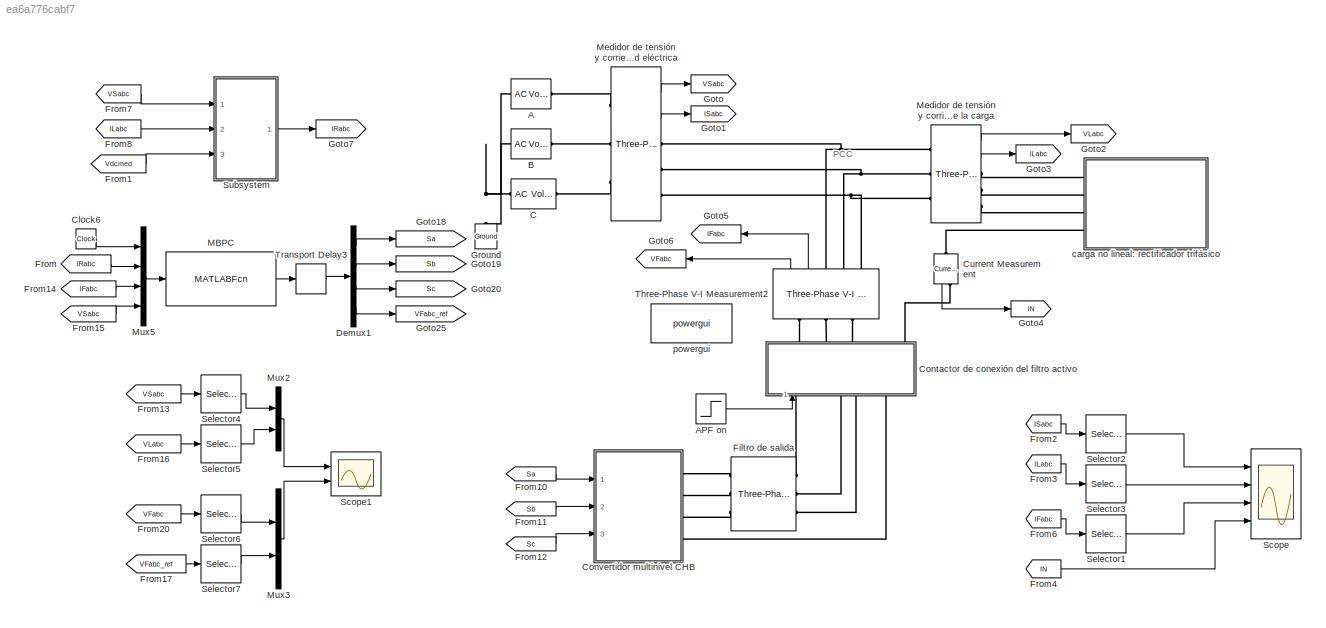
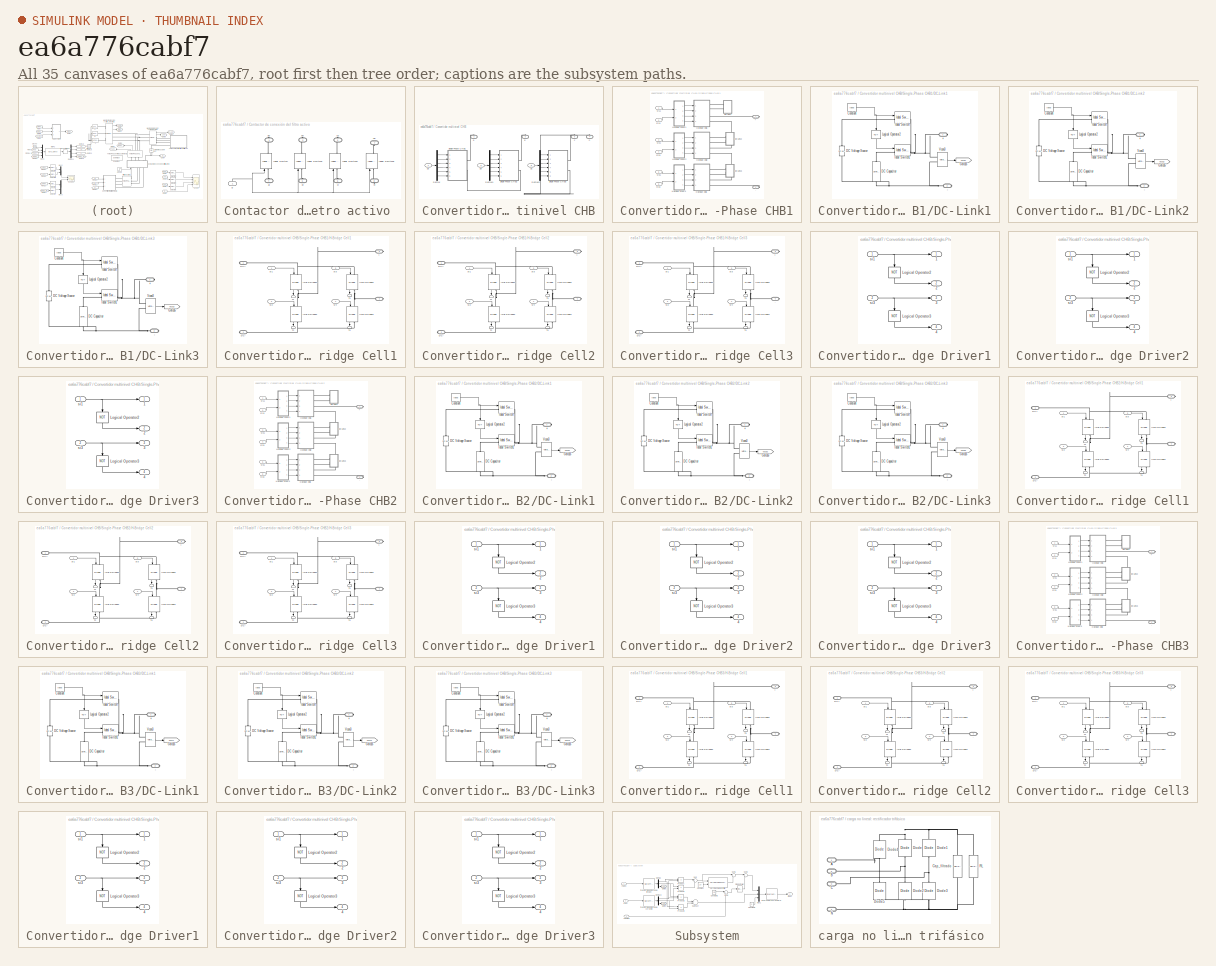
[diagram: thumbnail index - all 35 canvases of the model, root first then tree order]
MODEL slx_ea6a776cabf7
KIND model
CONFIG AbsTol = auto
CONFIG EnableMultiTasking = off
CONFIG FixedStep = auto
CONFIG MaxStep = 1e-4
CONFIG MinStep = auto
CONFIG RelTol = 1e-3
CONFIG SampleTimeConstraint = Unconstrained
CONFIG Solver = VariableStepAuto
CONFIG SolverName = VariableStepAuto
CONFIG StartTime = 0.0
CONFIG StopTime = 10.0
BLOCK [Reference] A   REF=powerlib/Electrical
Sources/AC Voltage Source
  Ports = [0, 0, 0, 0, 0, 1, 1]
  SourceBlock = powerlib/Electrical\nSources/AC Voltage Source
  SourceProductBaseCode = PS
  SourceProductName = Simscape Power Systems
  SourceType = AC Voltage Source
BLOCK [Step] APF on
  SampleTime = 0
  Time = APFon
BLOCK [Reference] B   REF=powerlib/Electrical
Sources/AC Voltage Source
  Ports = [0, 0, 0, 0, 0, 1, 1]
  SourceBlock = powerlib/Electrical\nSources/AC Voltage Source
  SourceProductBaseCode = PS
  SourceProductName = Simscape Power Systems
  SourceType = AC Voltage Source
BLOCK [Reference] C   REF=powerlib/Electrical
Sources/AC Voltage Source
  Ports = [0, 0, 0, 0, 0, 1, 1]
  SourceBlock = powerlib/Electrical\nSources/AC Voltage Source
  SourceProductBaseCode = PS
  SourceProductName = Simscape Power Systems
  SourceType = AC Voltage Source
BLOCK [Clock] Clock6
BLOCK [SubSystem] Contactor de conexión del filtro activo 
  Ports = [1, 0, 0, 0, 0, 4, 4]
  RequestExecContextInheritance = off
  Variant = off
BLOCK [Reference] Contactor de conexión del filtro activo /Ideal Switch  REF=powerlib/Power
Electronics/Ideal Switch
  Ports = [1, 1, 0, 0, 0, 1, 1]
  SourceBlock = powerlib/Power\nElectronics/Ideal Switch
  SourceProductBaseCode = PS
  SourceProductName = Simscape Power Systems
  SourceType = Ideal Switch
BLOCK [Reference] Contactor de conexión del filtro activo /Ideal Switch1  REF=powerlib/Power
Electronics/Ideal Switch
  Ports = [1, 1, 0, 0, 0, 1, 1]
  SourceBlock = powerlib/Power\nElectronics/Ideal Switch
  SourceProductBaseCode = PS
  SourceProductName = Simscape Power Systems
  SourceType = Ideal Switch
BLOCK [Reference] Contactor de conexión del filtro activo /Ideal Switch2  REF=powerlib/Power
Electronics/Ideal Switch
  Ports = [1, 1, 0, 0, 0, 1, 1]
  SourceBlock = powerlib/Power\nElectronics/Ideal Switch
  SourceProductBaseCode = PS
  SourceProductName = Simscape Power Systems
  SourceType = Ideal Switch
BLOCK [Reference] Contactor de conexión del filtro activo /Ideal Switch3  REF=powerlib/Power
Electronics/Ideal Switch
  Ports = [1, 1, 0, 0, 0, 1, 1]
  SourceBlock = powerlib/Power\nElectronics/Ideal Switch
  SourceProductBaseCode = PS
  SourceProductName = Simscape Power Systems
  SourceType = Ideal Switch
BLOCK [PMIOPort] Contactor de conexión del filtro activo /ai
  Port = 4
  Side = Left
BLOCK [PMIOPort] Contactor de conexión del filtro activo /ao
  Port = 1
  Side = Right
BLOCK [PMIOPort] Contactor de conexión del filtro activo /bi
  Port = 5
  Side = Left
BLOCK [PMIOPort] Contactor de conexión del filtro activo /bo
  Port = 2
  Side = Right
BLOCK [PMIOPort] Contactor de conexión del filtro activo /ci
  Port = 6
  Side = Left
BLOCK [PMIOPort] Contactor de conexión del filtro activo /co
  Port = 3
  Side = Right
BLOCK [Inport] Contactor de conexión del filtro activo /g
  IconDisplay = Port number
BLOCK [PMIOPort] Contactor de conexión del filtro activo /ni
  Port = 8
  Side = Right
BLOCK [PMIOPort] Contactor de conexión del filtro activo /no
  Port = 7
  Side = Left
BLOCK [SubSystem] Convertidor multinivel CHB
  Ports = [3, 0, 0, 0, 0, 0, 4]
  RequestExecContextInheritance = off
  Variant = off
BLOCK [Demux] Convertidor multinivel CHB/Demux
  DisplayOption = bar
  Outputs = 6
  Ports = [1, 6]
BLOCK [Demux] Convertidor multinivel CHB/Demux1
  DisplayOption = bar
  Outputs = 6
  Ports = [1, 6]
BLOCK [Demux] Convertidor multinivel CHB/Demux2
  DisplayOption = bar
  Outputs = 6
  Ports = [1, 6]
BLOCK [Inport] Convertidor multinivel CHB/Sa
  IconDisplay = Port number
BLOCK [Inport] Convertidor multinivel CHB/Sb
  IconDisplay = Port number
  Port = 2
BLOCK [Inport] Convertidor multinivel CHB/Sc
  IconDisplay = Port number
  Port = 3
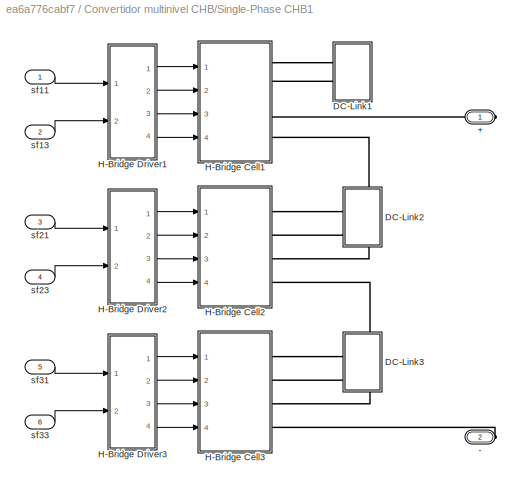
BLOCK [SubSystem] Convertidor multinivel CHB/Single-Phase CHB1
  Ports = [6, 0, 0, 0, 0, 0, 2]
  RequestExecContextInheritance = off
  Variant = off
BLOCK [PMIOPort] Convertidor multinivel CHB/Single-Phase CHB1/+
  Port = 1
  Side = Right
BLOCK [PMIOPort] Convertidor multinivel CHB/Single-Phase CHB1/-
  Port = 2
  Side = Right
BLOCK [SubSystem] Convertidor multinivel CHB/Single-Phase CHB1/DC-Link1
  Ports = [0, 0, 0, 0, 0, 0, 2]
  RequestExecContextInheritance = off
  Variant = off
BLOCK [PMIOPort] Convertidor multinivel CHB/Single-Phase CHB1/DC-Link1/+
  Port = 1
  Side = Right
BLOCK [PMIOPort] Convertidor multinivel CHB/Single-Phase CHB1/DC-Link1/-
  Port = 2
  Side = Right
BLOCK [Constant] Convertidor multinivel CHB/Single-Phase CHB1/DC-Link1/Constant
  Value = Ideal
BLOCK [Reference] Convertidor multinivel CHB/Single-Phase CHB1/DC-Link1/DC Capacitor  REF=powerlib/Elements/Series RLC Branch
  Ports = [0, 0, 0, 0, 0, 1, 1]
  SourceBlock = powerlib/Elements/Series RLC Branch
  SourceProductBaseCode = PS
  SourceProductName = Simscape Power Systems
  SourceType = Series RLC Branch
BLOCK [Reference] Convertidor multinivel CHB/Single-Phase CHB1/DC-Link1/DC Voltage Source  REF=powerlib/Electrical
Sources/DC Voltage Source
  Ports = [0, 0, 0, 0, 0, 1, 1]
  SourceBlock = powerlib/Electrical\nSources/DC Voltage Source
  SourceProductBaseCode = PS
  SourceProductName = Simscape Power Systems
  SourceType = DC Voltage Source
BLOCK [Goto] Convertidor multinivel CHB/Single-Phase CHB1/DC-Link1/Goto16
  GotoTag = Vcca1
  TagVisibility = global
BLOCK [Reference] Convertidor multinivel CHB/Single-Phase CHB1/DC-Link1/Ideal Switch  REF=powerlib/Power
Electronics/Ideal Switch
  Ports = [1, 1, 0, 0, 0, 1, 1]
  SourceBlock = powerlib/Power\nElectronics/Ideal Switch
  SourceProductBaseCode = PS
  SourceProductName = Simscape Power Systems
  SourceType = Ideal Switch
BLOCK [Reference] Convertidor multinivel CHB/Single-Phase CHB1/DC-Link1/Ideal Switch1  REF=powerlib/Power
Electronics/Ideal Switch
  Ports = [1, 1, 0, 0, 0, 1, 1]
  SourceBlock = powerlib/Power\nElectronics/Ideal Switch
  SourceProductBaseCode = PS
  SourceProductName = Simscape Power Systems
  SourceType = Ideal Switch
BLOCK [Logic] Convertidor multinivel CHB/Single-Phase CHB1/DC-Link1/Logical Operator2
  AllPortsSameDT = off
  Operator = NOT
  OutDataTypeStr = boolean
  Ports = [1, 1]
BLOCK [Reference] Convertidor multinivel CHB/Single-Phase CHB1/DC-Link1/Vcan3  REF=powerlib/Measurements/Voltage Measurement
  Ports = [0, 1, 0, 0, 0, 2]
  SourceBlock = powerlib/Measurements/Voltage Measurement
  SourceProductBaseCode = PS
  SourceProductName = Simscape Power Systems
  SourceType = Voltage Measurement
BLOCK [SubSystem] Convertidor multinivel CHB/Single-Phase CHB1/DC-Link2
  Ports = [0, 0, 0, 0, 0, 0, 2]
  RequestExecContextInheritance = off
  Variant = off
BLOCK [PMIOPort] Convertidor multinivel CHB/Single-Phase CHB1/DC-Link2/+
  Port = 1
  Side = Right
BLOCK [PMIOPort] Convertidor multinivel CHB/Single-Phase CHB1/DC-Link2/-
  Port = 2
  Side = Right
BLOCK [Constant] Convertidor multinivel CHB/Single-Phase CHB1/DC-Link2/Constant
  Value = Ideal
BLOCK [Reference] Convertidor multinivel CHB/Single-Phase CHB1/DC-Link2/DC Capacitor  REF=powerlib/Elements/Series RLC Branch
  Ports = [0, 0, 0, 0, 0, 1, 1]
  SourceBlock = powerlib/Elements/Series RLC Branch
  SourceProductBaseCode = PS
  SourceProductName = Simscape Power Systems
  SourceType = Series RLC Branch
BLOCK [Reference] Convertidor multinivel CHB/Single-Phase CHB1/DC-Link2/DC Voltage Source  REF=powerlib/Electrical
Sources/DC Voltage Source
  Ports = [0, 0, 0, 0, 0, 1, 1]
  SourceBlock = powerlib/Electrical\nSources/DC Voltage Source
  SourceProductBaseCode = PS
  SourceProductName = Simscape Power Systems
  SourceType = DC Voltage Source
BLOCK [Goto] Convertidor multinivel CHB/Single-Phase CHB1/DC-Link2/Goto16
  GotoTag = Vcca2
  TagVisibility = global
BLOCK [Reference] Convertidor multinivel CHB/Single-Phase CHB1/DC-Link2/Ideal Switch  REF=powerlib/Power
Electronics/Ideal Switch
  Ports = [1, 1, 0, 0, 0, 1, 1]
  SourceBlock = powerlib/Power\nElectronics/Ideal Switch
  SourceProductBaseCode = PS
  SourceProductName = Simscape Power Systems
  SourceType = Ideal Switch
BLOCK [Reference] Convertidor multinivel CHB/Single-Phase CHB1/DC-Link2/Ideal Switch1  REF=powerlib/Power
Electronics/Ideal Switch
  Ports = [1, 1, 0, 0, 0, 1, 1]
  SourceBlock = powerlib/Power\nElectronics/Ideal Switch
  SourceProductBaseCode = PS
  SourceProductName = Simscape Power Systems
  SourceType = Ideal Switch
BLOCK [Logic] Convertidor multinivel CHB/Single-Phase CHB1/DC-Link2/Logical Operator2
  AllPortsSameDT = off
  Operator = NOT
  OutDataTypeStr = boolean
  Ports = [1, 1]
BLOCK [Reference] Convertidor multinivel CHB/Single-Phase CHB1/DC-Link2/Vcan3  REF=powerlib/Measurements/Voltage Measurement
  Ports = [0, 1, 0, 0, 0, 2]
  SourceBlock = powerlib/Measurements/Voltage Measurement
  SourceProductBaseCode = PS
  SourceProductName = Simscape Power Systems
  SourceType = Voltage Measurement
BLOCK [SubSystem] Convertidor multinivel CHB/Single-Phase CHB1/DC-Link3
  Ports = [0, 0, 0, 0, 0, 0, 2]
  RequestExecContextInheritance = off
  Variant = off
BLOCK [PMIOPort] Convertidor multinivel CHB/Single-Phase CHB1/DC-Link3/+
  Port = 1
  Side = Right
BLOCK [PMIOPort] Convertidor multinivel CHB/Single-Phase CHB1/DC-Link3/-
  Port = 2
  Side = Right
BLOCK [Constant] Convertidor multinivel CHB/Single-Phase CHB1/DC-Link3/Constant
  Value = Ideal
BLOCK [Reference] Convertidor multinivel CHB/Single-Phase CHB1/DC-Link3/DC Capacitor  REF=powerlib/Elements/Series RLC Branch
  Ports = [0, 0, 0, 0, 0, 1, 1]
  SourceBlock = powerlib/Elements/Series RLC Branch
  SourceProductBaseCode = PS
  SourceProductName = Simscape Power Systems
  SourceType = Series RLC Branch
BLOCK [Reference] Convertidor multinivel CHB/Single-Phase CHB1/DC-Link3/DC Voltage Source  REF=powerlib/Electrical
Sources/DC Voltage Source
  Ports = [0, 0, 0, 0, 0, 1, 1]
  SourceBlock = powerlib/Electrical\nSources/DC Voltage Source
  SourceProductBaseCode = PS
  SourceProductName = Simscape Power Systems
  SourceType = DC Voltage Source
BLOCK [Goto] Convertidor multinivel CHB/Single-Phase CHB1/DC-Link3/Goto16
  GotoTag = Vcca3
  TagVisibility = global
BLOCK [Reference] Convertidor multinivel CHB/Single-Phase CHB1/DC-Link3/Ideal Switch  REF=powerlib/Power
Electronics/Ideal Switch
  Ports = [1, 1, 0, 0, 0, 1, 1]
  SourceBlock = powerlib/Power\nElectronics/Ideal Switch
  SourceProductBaseCode = PS
  SourceProductName = Simscape Power Systems
  SourceType = Ideal Switch
BLOCK [Reference] Convertidor multinivel CHB/Single-Phase CHB1/DC-Link3/Ideal Switch1  REF=powerlib/Power
Electronics/Ideal Switch
  Ports = [1, 1, 0, 0, 0, 1, 1]
  SourceBlock = powerlib/Power\nElectronics/Ideal Switch
  SourceProductBaseCode = PS
  SourceProductName = Simscape Power Systems
  SourceType = Ideal Switch
BLOCK [Logic] Convertidor multinivel CHB/Single-Phase CHB1/DC-Link3/Logical Operator2
  AllPortsSameDT = off
  Operator = NOT
  OutDataTypeStr = boolean
  Ports = [1, 1]
BLOCK [Reference] Convertidor multinivel CHB/Single-Phase CHB1/DC-Link3/Vcan3  REF=powerlib/Measurements/Voltage Measurement
  Ports = [0, 1, 0, 0, 0, 2]
  SourceBlock = powerlib/Measurements/Voltage Measurement
  SourceProductBaseCode = PS
  SourceProductName = Simscape Power Systems
  SourceType = Voltage Measurement
BLOCK [SubSystem] Convertidor multinivel CHB/Single-Phase CHB1/H-Bridge Cell1
  Ports = [4, 0, 0, 0, 0, 0, 4]
  RequestExecContextInheritance = off
  Variant = off
BLOCK [PMIOPort] Convertidor multinivel CHB/Single-Phase CHB1/H-Bridge Cell1/+
  Port = 3
  Side = Right
BLOCK [PMIOPort] Convertidor multinivel CHB/Single-Phase CHB1/H-Bridge Cell1/-
  Port = 4
  Side = Right
BLOCK [PMIOPort] Convertidor multinivel CHB/Single-Phase CHB1/H-Bridge Cell1/DC+
  Port = 1
  Side = Right
BLOCK [PMIOPort] Convertidor multinivel CHB/Single-Phase CHB1/H-Bridge Cell1/DC-
  Port = 2
  Side = Right
BLOCK [Reference] Convertidor multinivel CHB/Single-Phase CHB1/H-Bridge Cell1/IGBT//Diode1  REF=powerlib/Power
Electronics/IGBT//Diode
  Ports = [1, 1, 0, 0, 0, 1, 1]
  SourceBlock = powerlib/Power\nElectronics/IGBT//Diode
  SourceProductBaseCode = PS
  SourceProductName = Simscape Power Systems
  SourceType = IGBT/Diode
BLOCK [Reference] Convertidor multinivel CHB/Single-Phase CHB1/H-Bridge Cell1/IGBT//Diode2  REF=powerlib/Power
Electronics/IGBT//Diode
  Ports = [1, 1, 0, 0, 0, 1, 1]
  SourceBlock = powerlib/Power\nElectronics/IGBT//Diode
  SourceProductBaseCode = PS
  SourceProductName = Simscape Power Systems
  SourceType = IGBT/Diode
BLOCK [Reference] Convertidor multinivel CHB/Single-Phase CHB1/H-Bridge Cell1/IGBT//Diode3  REF=powerlib/Power
Electronics/IGBT//Diode
  Ports = [1, 1, 0, 0, 0, 1, 1]
  SourceBlock = powerlib/Power\nElectronics/IGBT//Diode
  SourceProductBaseCode = PS
  SourceProductName = Simscape Power Systems
  SourceType = IGBT/Diode
BLOCK [Reference] Convertidor multinivel CHB/Single-Phase CHB1/H-Bridge Cell1/IGBT//Diode4  REF=powerlib/Power
Electronics/IGBT//Diode
  Ports = [1, 1, 0, 0, 0, 1, 1]
  SourceBlock = powerlib/Power\nElectronics/IGBT//Diode
  SourceProductBaseCode = PS
  SourceProductName = Simscape Power Systems
  SourceType = IGBT/Diode
BLOCK [Terminator] Convertidor multinivel CHB/Single-Phase CHB1/H-Bridge Cell1/T1
BLOCK [Terminator] Convertidor multinivel CHB/Single-Phase CHB1/H-Bridge Cell1/T2
BLOCK [Terminator] Convertidor multinivel CHB/Single-Phase CHB1/H-Bridge Cell1/T3
BLOCK [Terminator] Convertidor multinivel CHB/Single-Phase CHB1/H-Bridge Cell1/T4
BLOCK [Inport] Convertidor multinivel CHB/Single-Phase CHB1/H-Bridge Cell1/si1
  IconDisplay = Port number
BLOCK [Inport] Convertidor multinivel CHB/Single-Phase CHB1/H-Bridge Cell1/si2
  IconDisplay = Port number
  Port = 2
BLOCK [Inport] Convertidor multinivel CHB/Single-Phase CHB1/H-Bridge Cell1/si3
  IconDisplay = Port number
  Port = 3
BLOCK [Inport] Convertidor multinivel CHB/Single-Phase CHB1/H-Bridge Cell1/si4
  IconDisplay = Port number
  Port = 4
BLOCK [SubSystem] Convertidor multinivel CHB/Single-Phase CHB1/H-Bridge Cell2
  Ports = [4, 0, 0, 0, 0, 0, 4]
  RequestExecContextInheritance = off
  Variant = off
BLOCK [PMIOPort] Convertidor multinivel CHB/Single-Phase CHB1/H-Bridge Cell2/+
  Port = 3
  Side = Right
BLOCK [PMIOPort] Convertidor multinivel CHB/Single-Phase CHB1/H-Bridge Cell2/-
  Port = 4
  Side = Right
BLOCK [PMIOPort] Convertidor multinivel CHB/Single-Phase CHB1/H-Bridge Cell2/DC+
  Port = 1
  Side = Right
BLOCK [PMIOPort] Convertidor multinivel CHB/Single-Phase CHB1/H-Bridge Cell2/DC-
  Port = 2
  Side = Right
BLOCK [Reference] Convertidor multinivel CHB/Single-Phase CHB1/H-Bridge Cell2/IGBT//Diode1  REF=powerlib/Power
Electronics/IGBT//Diode
  Ports = [1, 1, 0, 0, 0, 1, 1]
  SourceBlock = powerlib/Power\nElectronics/IGBT//Diode
  SourceProductBaseCode = PS
  SourceProductName = Simscape Power Systems
  SourceType = IGBT/Diode
BLOCK [Reference] Convertidor multinivel CHB/Single-Phase CHB1/H-Bridge Cell2/IGBT//Diode2  REF=powerlib/Power
Electronics/IGBT//Diode
  Ports = [1, 1, 0, 0, 0, 1, 1]
  SourceBlock = powerlib/Power\nElectronics/IGBT//Diode
  SourceProductBaseCode = PS
  SourceProductName = Simscape Power Systems
  SourceType = IGBT/Diode
BLOCK [Reference] Convertidor multinivel CHB/Single-Phase CHB1/H-Bridge Cell2/IGBT//Diode3  REF=powerlib/Power
Electronics/IGBT//Diode
  Ports = [1, 1, 0, 0, 0, 1, 1]
  SourceBlock = powerlib/Power\nElectronics/IGBT//Diode
  SourceProductBaseCode = PS
  SourceProductName = Simscape Power Systems
  SourceType = IGBT/Diode
BLOCK [Reference] Convertidor multinivel CHB/Single-Phase CHB1/H-Bridge Cell2/IGBT//Diode4  REF=powerlib/Power
Electronics/IGBT//Diode
  Ports = [1, 1, 0, 0, 0, 1, 1]
  SourceBlock = powerlib/Power\nElectronics/IGBT//Diode
  SourceProductBaseCode = PS
  SourceProductName = Simscape Power Systems
  SourceType = IGBT/Diode
BLOCK [Terminator] Convertidor multinivel CHB/Single-Phase CHB1/H-Bridge Cell2/T1
BLOCK [Terminator] Convertidor multinivel CHB/Single-Phase CHB1/H-Bridge Cell2/T2
BLOCK [Terminator] Convertidor multinivel CHB/Single-Phase CHB1/H-Bridge Cell2/T3
BLOCK [Terminator] Convertidor multinivel CHB/Single-Phase CHB1/H-Bridge Cell2/T4
BLOCK [Inport] Convertidor multinivel CHB/Single-Phase CHB1/H-Bridge Cell2/si1
  IconDisplay = Port number
BLOCK [Inport] Convertidor multinivel CHB/Single-Phase CHB1/H-Bridge Cell2/si2
  IconDisplay = Port number
  Port = 2
BLOCK [Inport] Convertidor multinivel CHB/Single-Phase CHB1/H-Bridge Cell2/si3
  IconDisplay = Port number
  Port = 3
BLOCK [Inport] Convertidor multinivel CHB/Single-Phase CHB1/H-Bridge Cell2/si4
  IconDisplay = Port number
  Port = 4
BLOCK [SubSystem] Convertidor multinivel CHB/Single-Phase CHB1/H-Bridge Cell3
  Ports = [4, 0, 0, 0, 0, 0, 4]
  RequestExecContextInheritance = off
  Variant = off
BLOCK [PMIOPort] Convertidor multinivel CHB/Single-Phase CHB1/H-Bridge Cell3/+
  Port = 3
  Side = Right
BLOCK [PMIOPort] Convertidor multinivel CHB/Single-Phase CHB1/H-Bridge Cell3/-
  Port = 4
  Side = Right
BLOCK [PMIOPort] Convertidor multinivel CHB/Single-Phase CHB1/H-Bridge Cell3/DC+
  Port = 1
  Side = Right
BLOCK [PMIOPort] Convertidor multinivel CHB/Single-Phase CHB1/H-Bridge Cell3/DC-
  Port = 2
  Side = Right
BLOCK [Reference] Convertidor multinivel CHB/Single-Phase CHB1/H-Bridge Cell3/IGBT//Diode1  REF=powerlib/Power
Electronics/IGBT//Diode
  Ports = [1, 1, 0, 0, 0, 1, 1]
  SourceBlock = powerlib/Power\nElectronics/IGBT//Diode
  SourceProductBaseCode = PS
  SourceProductName = Simscape Power Systems
  SourceType = IGBT/Diode
BLOCK [Reference] Convertidor multinivel CHB/Single-Phase CHB1/H-Bridge Cell3/IGBT//Diode2  REF=powerlib/Power
Electronics/IGBT//Diode
  Ports = [1, 1, 0, 0, 0, 1, 1]
  SourceBlock = powerlib/Power\nElectronics/IGBT//Diode
  SourceProductBaseCode = PS
  SourceProductName = Simscape Power Systems
  SourceType = IGBT/Diode
BLOCK [Reference] Convertidor multinivel CHB/Single-Phase CHB1/H-Bridge Cell3/IGBT//Diode3  REF=powerlib/Power
Electronics/IGBT//Diode
  Ports = [1, 1, 0, 0, 0, 1, 1]
  SourceBlock = powerlib/Power\nElectronics/IGBT//Diode
  SourceProductBaseCode = PS
  SourceProductName = Simscape Power Systems
  SourceType = IGBT/Diode
BLOCK [Reference] Convertidor multinivel CHB/Single-Phase CHB1/H-Bridge Cell3/IGBT//Diode4  REF=powerlib/Power
Electronics/IGBT//Diode
  Ports = [1, 1, 0, 0, 0, 1, 1]
  SourceBlock = powerlib/Power\nElectronics/IGBT//Diode
  SourceProductBaseCode = PS
  SourceProductName = Simscape Power Systems
  SourceType = IGBT/Diode
BLOCK [Terminator] Convertidor multinivel CHB/Single-Phase CHB1/H-Bridge Cell3/T1
BLOCK [Terminator] Convertidor multinivel CHB/Single-Phase CHB1/H-Bridge Cell3/T2
BLOCK [Terminator] Convertidor multinivel CHB/Single-Phase CHB1/H-Bridge Cell3/T3
BLOCK [Terminator] Convertidor multinivel CHB/Single-Phase CHB1/H-Bridge Cell3/T4
BLOCK [Inport] Convertidor multinivel CHB/Single-Phase CHB1/H-Bridge Cell3/si1
  IconDisplay = Port number
BLOCK [Inport] Convertidor multinivel CHB/Single-Phase CHB1/H-Bridge Cell3/si2
  IconDisplay = Port number
  Port = 2
BLOCK [Inport] Convertidor multinivel CHB/Single-Phase CHB1/H-Bridge Cell3/si3
  IconDisplay = Port number
  Port = 3
BLOCK [Inport] Convertidor multinivel CHB/Single-Phase CHB1/H-Bridge Cell3/si4
  IconDisplay = Port number
  Port = 4
BLOCK [SubSystem] Convertidor multinivel CHB/Single-Phase CHB1/H-Bridge Driver1
  Ports = [2, 4]
  RequestExecContextInheritance = off
  Variant = off
BLOCK [Outport] Convertidor multinivel CHB/Single-Phase CHB1/H-Bridge Driver1/1
  IconDisplay = Port number
BLOCK [Outport] Convertidor multinivel CHB/Single-Phase CHB1/H-Bridge Driver1/2
  IconDisplay = Port number
  Port = 2
BLOCK [Outport] Convertidor multinivel CHB/Single-Phase CHB1/H-Bridge Driver1/3
  IconDisplay = Port number
  Port = 3
BLOCK [Outport] Convertidor multinivel CHB/Single-Phase CHB1/H-Bridge Driver1/4
  IconDisplay = Port number
  Port = 4
BLOCK [Logic] Convertidor multinivel CHB/Single-Phase CHB1/H-Bridge Driver1/Logical Operator2
  AllPortsSameDT = off
  Operator = NOT
  OutDataTypeStr = boolean
  Ports = [1, 1]
BLOCK [Logic] Convertidor multinivel CHB/Single-Phase CHB1/H-Bridge Driver1/Logical Operator3
  AllPortsSameDT = off
  Operator = NOT
  OutDataTypeStr = boolean
  Ports = [1, 1]
BLOCK [Inport] Convertidor multinivel CHB/Single-Phase CHB1/H-Bridge Driver1/si1
  IconDisplay = Port number
BLOCK [Inport] Convertidor multinivel CHB/Single-Phase CHB1/H-Bridge Driver1/si3
  IconDisplay = Port number
  Port = 2
BLOCK [SubSystem] Convertidor multinivel CHB/Single-Phase CHB1/H-Bridge Driver2
  Ports = [2, 4]
  RequestExecContextInheritance = off
  Variant = off
BLOCK [Outport] Convertidor multinivel CHB/Single-Phase CHB1/H-Bridge Driver2/1
  IconDisplay = Port number
BLOCK [Outport] Convertidor multinivel CHB/Single-Phase CHB1/H-Bridge Driver2/2
  IconDisplay = Port number
  Port = 2
BLOCK [Outport] Convertidor multinivel CHB/Single-Phase CHB1/H-Bridge Driver2/3
  IconDisplay = Port number
  Port = 3
BLOCK [Outport] Convertidor multinivel CHB/Single-Phase CHB1/H-Bridge Driver2/4
  IconDisplay = Port number
  Port = 4
BLOCK [Logic] Convertidor multinivel CHB/Single-Phase CHB1/H-Bridge Driver2/Logical Operator2
  AllPortsSameDT = off
  Operator = NOT
  OutDataTypeStr = boolean
  Ports = [1, 1]
BLOCK [Logic] Convertidor multinivel CHB/Single-Phase CHB1/H-Bridge Driver2/Logical Operator3
  AllPortsSameDT = off
  Operator = NOT
  OutDataTypeStr = boolean
  Ports = [1, 1]
BLOCK [Inport] Convertidor multinivel CHB/Single-Phase CHB1/H-Bridge Driver2/si1
  IconDisplay = Port number
BLOCK [Inport] Convertidor multinivel CHB/Single-Phase CHB1/H-Bridge Driver2/si3
  IconDisplay = Port number
  Port = 2
BLOCK [SubSystem] Convertidor multinivel CHB/Single-Phase CHB1/H-Bridge Driver3
  Ports = [2, 4]
  RequestExecContextInheritance = off
  Variant = off
BLOCK [Outport] Convertidor multinivel CHB/Single-Phase CHB1/H-Bridge Driver3/1
  IconDisplay = Port number
BLOCK [Outport] Convertidor multinivel CHB/Single-Phase CHB1/H-Bridge Driver3/2
  IconDisplay = Port number
  Port = 2
BLOCK [Outport] Convertidor multinivel CHB/Single-Phase CHB1/H-Bridge Driver3/3
  IconDisplay = Port number
  Port = 3
BLOCK [Outport] Convertidor multinivel CHB/Single-Phase CHB1/H-Bridge Driver3/4
  IconDisplay = Port number
  Port = 4
BLOCK [Logic] Convertidor multinivel CHB/Single-Phase CHB1/H-Bridge Driver3/Logical Operator2
  AllPortsSameDT = off
  Operator = NOT
  OutDataTypeStr = boolean
  Ports = [1, 1]
BLOCK [Logic] Convertidor multinivel CHB/Single-Phase CHB1/H-Bridge Driver3/Logical Operator3
  AllPortsSameDT = off
  Operator = NOT
  OutDataTypeStr = boolean
  Ports = [1, 1]
BLOCK [Inport] Convertidor multinivel CHB/Single-Phase CHB1/H-Bridge Driver3/si1
  IconDisplay = Port number
BLOCK [Inport] Convertidor multinivel CHB/Single-Phase CHB1/H-Bridge Driver3/si3
  IconDisplay = Port number
  Port = 2
BLOCK [Inport] Convertidor multinivel CHB/Single-Phase CHB1/sf11
  IconDisplay = Port number
BLOCK [Inport] Convertidor multinivel CHB/Single-Phase CHB1/sf13
  IconDisplay = Port number
  Port = 2
BLOCK [Inport] Convertidor multinivel CHB/Single-Phase CHB1/sf21
  IconDisplay = Port number
  Port = 3
BLOCK [Inport] Convertidor multinivel CHB/Single-Phase CHB1/sf23
  IconDisplay = Port number
  Port = 4
BLOCK [Inport] Convertidor multinivel CHB/Single-Phase CHB1/sf31
  IconDisplay = Port number
  Port = 5
BLOCK [Inport] Convertidor multinivel CHB/Single-Phase CHB1/sf33
  IconDisplay = Port number
  Port = 6
BLOCK [SubSystem] Convertidor multinivel CHB/Single-Phase CHB2
  Ports = [6, 0, 0, 0, 0, 0, 2]
  RequestExecContextInheritance = off
  Variant = off
BLOCK [PMIOPort] Convertidor multinivel CHB/Single-Phase CHB2/+
  Port = 1
  Side = Right
BLOCK [PMIOPort] Convertidor multinivel CHB/Single-Phase CHB2/-
  Port = 2
  Side = Right
BLOCK [SubSystem] Convertidor multinivel CHB/Single-Phase CHB2/DC-Link1
  Ports = [0, 0, 0, 0, 0, 0, 2]
  RequestExecContextInheritance = off
  Variant = off
BLOCK [PMIOPort] Convertidor multinivel CHB/Single-Phase CHB2/DC-Link1/+
  Port = 1
  Side = Right
BLOCK [PMIOPort] Convertidor multinivel CHB/Single-Phase CHB2/DC-Link1/-
  Port = 2
  Side = Right
BLOCK [Constant] Convertidor multinivel CHB/Single-Phase CHB2/DC-Link1/Constant
  Value = Ideal
BLOCK [Reference] Convertidor multinivel CHB/Single-Phase CHB2/DC-Link1/DC Capacitor  REF=powerlib/Elements/Series RLC Branch
  Ports = [0, 0, 0, 0, 0, 1, 1]
  SourceBlock = powerlib/Elements/Series RLC Branch
  SourceProductBaseCode = PS
  SourceProductName = Simscape Power Systems
  SourceType = Series RLC Branch
BLOCK [Reference] Convertidor multinivel CHB/Single-Phase CHB2/DC-Link1/DC Voltage Source  REF=powerlib/Electrical
Sources/DC Voltage Source
  Ports = [0, 0, 0, 0, 0, 1, 1]
  SourceBlock = powerlib/Electrical\nSources/DC Voltage Source
  SourceProductBaseCode = PS
  SourceProductName = Simscape Power Systems
  SourceType = DC Voltage Source
BLOCK [Goto] Convertidor multinivel CHB/Single-Phase CHB2/DC-Link1/Goto16
  GotoTag = Vccb1
  TagVisibility = global
BLOCK [Reference] Convertidor multinivel CHB/Single-Phase CHB2/DC-Link1/Ideal Switch  REF=powerlib/Power
Electronics/Ideal Switch
  Ports = [1, 1, 0, 0, 0, 1, 1]
  SourceBlock = powerlib/Power\nElectronics/Ideal Switch
  SourceProductBaseCode = PS
  SourceProductName = Simscape Power Systems
  SourceType = Ideal Switch
BLOCK [Reference] Convertidor multinivel CHB/Single-Phase CHB2/DC-Link1/Ideal Switch1  REF=powerlib/Power
Electronics/Ideal Switch
  Ports = [1, 1, 0, 0, 0, 1, 1]
  SourceBlock = powerlib/Power\nElectronics/Ideal Switch
  SourceProductBaseCode = PS
  SourceProductName = Simscape Power Systems
  SourceType = Ideal Switch
BLOCK [Logic] Convertidor multinivel CHB/Single-Phase CHB2/DC-Link1/Logical Operator2
  AllPortsSameDT = off
  Operator = NOT
  OutDataTypeStr = boolean
  Ports = [1, 1]
BLOCK [Reference] Convertidor multinivel CHB/Single-Phase CHB2/DC-Link1/Vcan3  REF=powerlib/Measurements/Voltage Measurement
  Ports = [0, 1, 0, 0, 0, 2]
  SourceBlock = powerlib/Measurements/Voltage Measurement
  SourceProductBaseCode = PS
  SourceProductName = Simscape Power Systems
  SourceType = Voltage Measurement
BLOCK [SubSystem] Convertidor multinivel CHB/Single-Phase CHB2/DC-Link2
  Ports = [0, 0, 0, 0, 0, 0, 2]
  RequestExecContextInheritance = off
  Variant = off
BLOCK [PMIOPort] Convertidor multinivel CHB/Single-Phase CHB2/DC-Link2/+
  Port = 1
  Side = Right
BLOCK [PMIOPort] Convertidor multinivel CHB/Single-Phase CHB2/DC-Link2/-
  Port = 2
  Side = Right
BLOCK [Constant] Convertidor multinivel CHB/Single-Phase CHB2/DC-Link2/Constant
  Value = Ideal
BLOCK [Reference] Convertidor multinivel CHB/Single-Phase CHB2/DC-Link2/DC Capacitor  REF=powerlib/Elements/Series RLC Branch
  Ports = [0, 0, 0, 0, 0, 1, 1]
  SourceBlock = powerlib/Elements/Series RLC Branch
  SourceProductBaseCode = PS
  SourceProductName = Simscape Power Systems
  SourceType = Series RLC Branch
BLOCK [Reference] Convertidor multinivel CHB/Single-Phase CHB2/DC-Link2/DC Voltage Source  REF=powerlib/Electrical
Sources/DC Voltage Source
  Ports = [0, 0, 0, 0, 0, 1, 1]
  SourceBlock = powerlib/Electrical\nSources/DC Voltage Source
  SourceProductBaseCode = PS
  SourceProductName = Simscape Power Systems
  SourceType = DC Voltage Source
BLOCK [Goto] Convertidor multinivel CHB/Single-Phase CHB2/DC-Link2/Goto16
  GotoTag = Vccb2
  TagVisibility = global
BLOCK [Reference] Convertidor multinivel CHB/Single-Phase CHB2/DC-Link2/Ideal Switch  REF=powerlib/Power
Electronics/Ideal Switch
  Ports = [1, 1, 0, 0, 0, 1, 1]
  SourceBlock = powerlib/Power\nElectronics/Ideal Switch
  SourceProductBaseCode = PS
  SourceProductName = Simscape Power Systems
  SourceType = Ideal Switch
BLOCK [Reference] Convertidor multinivel CHB/Single-Phase CHB2/DC-Link2/Ideal Switch1  REF=powerlib/Power
Electronics/Ideal Switch
  Ports = [1, 1, 0, 0, 0, 1, 1]
  SourceBlock = powerlib/Power\nElectronics/Ideal Switch
  SourceProductBaseCode = PS
  SourceProductName = Simscape Power Systems
  SourceType = Ideal Switch
BLOCK [Logic] Convertidor multinivel CHB/Single-Phase CHB2/DC-Link2/Logical Operator2
  AllPortsSameDT = off
  Operator = NOT
  OutDataTypeStr = boolean
  Ports = [1, 1]
BLOCK [Reference] Convertidor multinivel CHB/Single-Phase CHB2/DC-Link2/Vcan3  REF=powerlib/Measurements/Voltage Measurement
  Ports = [0, 1, 0, 0, 0, 2]
  SourceBlock = powerlib/Measurements/Voltage Measurement
  SourceProductBaseCode = PS
  SourceProductName = Simscape Power Systems
  SourceType = Voltage Measurement
BLOCK [SubSystem] Convertidor multinivel CHB/Single-Phase CHB2/DC-Link3
  Ports = [0, 0, 0, 0, 0, 0, 2]
  RequestExecContextInheritance = off
  Variant = off
BLOCK [PMIOPort] Convertidor multinivel CHB/Single-Phase CHB2/DC-Link3/+
  Port = 1
  Side = Right
BLOCK [PMIOPort] Convertidor multinivel CHB/Single-Phase CHB2/DC-Link3/-
  Port = 2
  Side = Right
BLOCK [Constant] Convertidor multinivel CHB/Single-Phase CHB2/DC-Link3/Constant
  Value = Ideal
BLOCK [Reference] Convertidor multinivel CHB/Single-Phase CHB2/DC-Link3/DC Capacitor  REF=powerlib/Elements/Series RLC Branch
  Ports = [0, 0, 0, 0, 0, 1, 1]
  SourceBlock = powerlib/Elements/Series RLC Branch
  SourceProductBaseCode = PS
  SourceProductName = Simscape Power Systems
  SourceType = Series RLC Branch
BLOCK [Reference] Convertidor multinivel CHB/Single-Phase CHB2/DC-Link3/DC Voltage Source  REF=powerlib/Electrical
Sources/DC Voltage Source
  Ports = [0, 0, 0, 0, 0, 1, 1]
  SourceBlock = powerlib/Electrical\nSources/DC Voltage Source
  SourceProductBaseCode = PS
  SourceProductName = Simscape Power Systems
  SourceType = DC Voltage Source
BLOCK [Goto] Convertidor multinivel CHB/Single-Phase CHB2/DC-Link3/Goto16
  GotoTag = Vccb3
  TagVisibility = global
BLOCK [Reference] Convertidor multinivel CHB/Single-Phase CHB2/DC-Link3/Ideal Switch  REF=powerlib/Power
Electronics/Ideal Switch
  Ports = [1, 1, 0, 0, 0, 1, 1]
  SourceBlock = powerlib/Power\nElectronics/Ideal Switch
  SourceProductBaseCode = PS
  SourceProductName = Simscape Power Systems
  SourceType = Ideal Switch
BLOCK [Reference] Convertidor multinivel CHB/Single-Phase CHB2/DC-Link3/Ideal Switch1  REF=powerlib/Power
Electronics/Ideal Switch
  Ports = [1, 1, 0, 0, 0, 1, 1]
  SourceBlock = powerlib/Power\nElectronics/Ideal Switch
  SourceProductBaseCode = PS
  SourceProductName = Simscape Power Systems
  SourceType = Ideal Switch
BLOCK [Logic] Convertidor multinivel CHB/Single-Phase CHB2/DC-Link3/Logical Operator2
  AllPortsSameDT = off
  Operator = NOT
  OutDataTypeStr = boolean
  Ports = [1, 1]
BLOCK [Reference] Convertidor multinivel CHB/Single-Phase CHB2/DC-Link3/Vcan3  REF=powerlib/Measurements/Voltage Measurement
  Ports = [0, 1, 0, 0, 0, 2]
  SourceBlock = powerlib/Measurements/Voltage Measurement
  SourceProductBaseCode = PS
  SourceProductName = Simscape Power Systems
  SourceType = Voltage Measurement
BLOCK [SubSystem] Convertidor multinivel CHB/Single-Phase CHB2/H-Bridge Cell1
  Ports = [4, 0, 0, 0, 0, 0, 4]
  RequestExecContextInheritance = off
  Variant = off
BLOCK [PMIOPort] Convertidor multinivel CHB/Single-Phase CHB2/H-Bridge Cell1/+
  Port = 3
  Side = Right
BLOCK [PMIOPort] Convertidor multinivel CHB/Single-Phase CHB2/H-Bridge Cell1/-
  Port = 4
  Side = Right
BLOCK [PMIOPort] Convertidor multinivel CHB/Single-Phase CHB2/H-Bridge Cell1/DC+
  Port = 1
  Side = Right
BLOCK [PMIOPort] Convertidor multinivel CHB/Single-Phase CHB2/H-Bridge Cell1/DC-
  Port = 2
  Side = Right
BLOCK [Reference] Convertidor multinivel CHB/Single-Phase CHB2/H-Bridge Cell1/IGBT//Diode1  REF=powerlib/Power
Electronics/IGBT//Diode
  Ports = [1, 1, 0, 0, 0, 1, 1]
  SourceBlock = powerlib/Power\nElectronics/IGBT//Diode
  SourceProductBaseCode = PS
  SourceProductName = Simscape Power Systems
  SourceType = IGBT/Diode
BLOCK [Reference] Convertidor multinivel CHB/Single-Phase CHB2/H-Bridge Cell1/IGBT//Diode2  REF=powerlib/Power
Electronics/IGBT//Diode
  Ports = [1, 1, 0, 0, 0, 1, 1]
  SourceBlock = powerlib/Power\nElectronics/IGBT//Diode
  SourceProductBaseCode = PS
  SourceProductName = Simscape Power Systems
  SourceType = IGBT/Diode
BLOCK [Reference] Convertidor multinivel CHB/Single-Phase CHB2/H-Bridge Cell1/IGBT//Diode3  REF=powerlib/Power
Electronics/IGBT//Diode
  Ports = [1, 1, 0, 0, 0, 1, 1]
  SourceBlock = powerlib/Power\nElectronics/IGBT//Diode
  SourceProductBaseCode = PS
  SourceProductName = Simscape Power Systems
  SourceType = IGBT/Diode
BLOCK [Reference] Convertidor multinivel CHB/Single-Phase CHB2/H-Bridge Cell1/IGBT//Diode4  REF=powerlib/Power
Electronics/IGBT//Diode
  Ports = [1, 1, 0, 0, 0, 1, 1]
  SourceBlock = powerlib/Power\nElectronics/IGBT//Diode
  SourceProductBaseCode = PS
  SourceProductName = Simscape Power Systems
  SourceType = IGBT/Diode
BLOCK [Terminator] Convertidor multinivel CHB/Single-Phase CHB2/H-Bridge Cell1/T1
BLOCK [Terminator] Convertidor multinivel CHB/Single-Phase CHB2/H-Bridge Cell1/T2
BLOCK [Terminator] Convertidor multinivel CHB/Single-Phase CHB2/H-Bridge Cell1/T3
BLOCK [Terminator] Convertidor multinivel CHB/Single-Phase CHB2/H-Bridge Cell1/T4
BLOCK [Inport] Convertidor multinivel CHB/Single-Phase CHB2/H-Bridge Cell1/si1
  IconDisplay = Port number
BLOCK [Inport] Convertidor multinivel CHB/Single-Phase CHB2/H-Bridge Cell1/si2
  IconDisplay = Port number
  Port = 2
BLOCK [Inport] Convertidor multinivel CHB/Single-Phase CHB2/H-Bridge Cell1/si3
  IconDisplay = Port number
  Port = 3
BLOCK [Inport] Convertidor multinivel CHB/Single-Phase CHB2/H-Bridge Cell1/si4
  IconDisplay = Port number
  Port = 4
BLOCK [SubSystem] Convertidor multinivel CHB/Single-Phase CHB2/H-Bridge Cell2
  Ports = [4, 0, 0, 0, 0, 0, 4]
  RequestExecContextInheritance = off
  Variant = off
BLOCK [PMIOPort] Convertidor multinivel CHB/Single-Phase CHB2/H-Bridge Cell2/+
  Port = 3
  Side = Right
BLOCK [PMIOPort] Convertidor multinivel CHB/Single-Phase CHB2/H-Bridge Cell2/-
  Port = 4
  Side = Right
BLOCK [PMIOPort] Convertidor multinivel CHB/Single-Phase CHB2/H-Bridge Cell2/DC+
  Port = 1
  Side = Right
BLOCK [PMIOPort] Convertidor multinivel CHB/Single-Phase CHB2/H-Bridge Cell2/DC-
  Port = 2
  Side = Right
BLOCK [Reference] Convertidor multinivel CHB/Single-Phase CHB2/H-Bridge Cell2/IGBT//Diode1  REF=powerlib/Power
Electronics/IGBT//Diode
  Ports = [1, 1, 0, 0, 0, 1, 1]
  SourceBlock = powerlib/Power\nElectronics/IGBT//Diode
  SourceProductBaseCode = PS
  SourceProductName = Simscape Power Systems
  SourceType = IGBT/Diode
BLOCK [Reference] Convertidor multinivel CHB/Single-Phase CHB2/H-Bridge Cell2/IGBT//Diode2  REF=powerlib/Power
Electronics/IGBT//Diode
  Ports = [1, 1, 0, 0, 0, 1, 1]
  SourceBlock = powerlib/Power\nElectronics/IGBT//Diode
  SourceProductBaseCode = PS
  SourceProductName = Simscape Power Systems
  SourceType = IGBT/Diode
BLOCK [Reference] Convertidor multinivel CHB/Single-Phase CHB2/H-Bridge Cell2/IGBT//Diode3  REF=powerlib/Power
Electronics/IGBT//Diode
  Ports = [1, 1, 0, 0, 0, 1, 1]
  SourceBlock = powerlib/Power\nElectronics/IGBT//Diode
  SourceProductBaseCode = PS
  SourceProductName = Simscape Power Systems
  SourceType = IGBT/Diode
BLOCK [Reference] Convertidor multinivel CHB/Single-Phase CHB2/H-Bridge Cell2/IGBT//Diode4  REF=powerlib/Power
Electronics/IGBT//Diode
  Ports = [1, 1, 0, 0, 0, 1, 1]
  SourceBlock = powerlib/Power\nElectronics/IGBT//Diode
  SourceProductBaseCode = PS
  SourceProductName = Simscape Power Systems
  SourceType = IGBT/Diode
BLOCK [Terminator] Convertidor multinivel CHB/Single-Phase CHB2/H-Bridge Cell2/T1
BLOCK [Terminator] Convertidor multinivel CHB/Single-Phase CHB2/H-Bridge Cell2/T2
BLOCK [Terminator] Convertidor multinivel CHB/Single-Phase CHB2/H-Bridge Cell2/T3
BLOCK [Terminator] Convertidor multinivel CHB/Single-Phase CHB2/H-Bridge Cell2/T4
BLOCK [Inport] Convertidor multinivel CHB/Single-Phase CHB2/H-Bridge Cell2/si1
  IconDisplay = Port number
BLOCK [Inport] Convertidor multinivel CHB/Single-Phase CHB2/H-Bridge Cell2/si2
  IconDisplay = Port number
  Port = 2
BLOCK [Inport] Convertidor multinivel CHB/Single-Phase CHB2/H-Bridge Cell2/si3
  IconDisplay = Port number
  Port = 3
BLOCK [Inport] Convertidor multinivel CHB/Single-Phase CHB2/H-Bridge Cell2/si4
  IconDisplay = Port number
  Port = 4
BLOCK [SubSystem] Convertidor multinivel CHB/Single-Phase CHB2/H-Bridge Cell3
  Ports = [4, 0, 0, 0, 0, 0, 4]
  RequestExecContextInheritance = off
  Variant = off
BLOCK [PMIOPort] Convertidor multinivel CHB/Single-Phase CHB2/H-Bridge Cell3/+
  Port = 3
  Side = Right
BLOCK [PMIOPort] Convertidor multinivel CHB/Single-Phase CHB2/H-Bridge Cell3/-
  Port = 4
  Side = Right
BLOCK [PMIOPort] Convertidor multinivel CHB/Single-Phase CHB2/H-Bridge Cell3/DC+
  Port = 1
  Side = Right
BLOCK [PMIOPort] Convertidor multinivel CHB/Single-Phase CHB2/H-Bridge Cell3/DC-
  Port = 2
  Side = Right
BLOCK [Reference] Convertidor multinivel CHB/Single-Phase CHB2/H-Bridge Cell3/IGBT//Diode1  REF=powerlib/Power
Electronics/IGBT//Diode
  Ports = [1, 1, 0, 0, 0, 1, 1]
  SourceBlock = powerlib/Power\nElectronics/IGBT//Diode
  SourceProductBaseCode = PS
  SourceProductName = Simscape Power Systems
  SourceType = IGBT/Diode
BLOCK [Reference] Convertidor multinivel CHB/Single-Phase CHB2/H-Bridge Cell3/IGBT//Diode2  REF=powerlib/Power
Electronics/IGBT//Diode
  Ports = [1, 1, 0, 0, 0, 1, 1]
  SourceBlock = powerlib/Power\nElectronics/IGBT//Diode
  SourceProductBaseCode = PS
  SourceProductName = Simscape Power Systems
  SourceType = IGBT/Diode
BLOCK [Reference] Convertidor multinivel CHB/Single-Phase CHB2/H-Bridge Cell3/IGBT//Diode3  REF=powerlib/Power
Electronics/IGBT//Diode
  Ports = [1, 1, 0, 0, 0, 1, 1]
  SourceBlock = powerlib/Power\nElectronics/IGBT//Diode
  SourceProductBaseCode = PS
  SourceProductName = Simscape Power Systems
  SourceType = IGBT/Diode
BLOCK [Reference] Convertidor multinivel CHB/Single-Phase CHB2/H-Bridge Cell3/IGBT//Diode4  REF=powerlib/Power
Electronics/IGBT//Diode
  Ports = [1, 1, 0, 0, 0, 1, 1]
  SourceBlock = powerlib/Power\nElectronics/IGBT//Diode
  SourceProductBaseCode = PS
  SourceProductName = Simscape Power Systems
  SourceType = IGBT/Diode
BLOCK [Terminator] Convertidor multinivel CHB/Single-Phase CHB2/H-Bridge Cell3/T1
BLOCK [Terminator] Convertidor multinivel CHB/Single-Phase CHB2/H-Bridge Cell3/T2
BLOCK [Terminator] Convertidor multinivel CHB/Single-Phase CHB2/H-Bridge Cell3/T3
BLOCK [Terminator] Convertidor multinivel CHB/Single-Phase CHB2/H-Bridge Cell3/T4
BLOCK [Inport] Convertidor multinivel CHB/Single-Phase CHB2/H-Bridge Cell3/si1
  IconDisplay = Port number
BLOCK [Inport] Convertidor multinivel CHB/Single-Phase CHB2/H-Bridge Cell3/si2
  IconDisplay = Port number
  Port = 2
BLOCK [Inport] Convertidor multinivel CHB/Single-Phase CHB2/H-Bridge Cell3/si3
  IconDisplay = Port number
  Port = 3
BLOCK [Inport] Convertidor multinivel CHB/Single-Phase CHB2/H-Bridge Cell3/si4
  IconDisplay = Port number
  Port = 4
BLOCK [SubSystem] Convertidor multinivel CHB/Single-Phase CHB2/H-Bridge Driver1
  Ports = [2, 4]
  RequestExecContextInheritance = off
  Variant = off
BLOCK [Outport] Convertidor multinivel CHB/Single-Phase CHB2/H-Bridge Driver1/1
  IconDisplay = Port number
BLOCK [Outport] Convertidor multinivel CHB/Single-Phase CHB2/H-Bridge Driver1/2
  IconDisplay = Port number
  Port = 2
BLOCK [Outport] Convertidor multinivel CHB/Single-Phase CHB2/H-Bridge Driver1/3
  IconDisplay = Port number
  Port = 3
BLOCK [Outport] Convertidor multinivel CHB/Single-Phase CHB2/H-Bridge Driver1/4
  IconDisplay = Port number
  Port = 4
BLOCK [Logic] Convertidor multinivel CHB/Single-Phase CHB2/H-Bridge Driver1/Logical Operator2
  AllPortsSameDT = off
  Operator = NOT
  OutDataTypeStr = boolean
  Ports = [1, 1]
BLOCK [Logic] Convertidor multinivel CHB/Single-Phase CHB2/H-Bridge Driver1/Logical Operator3
  AllPortsSameDT = off
  Operator = NOT
  OutDataTypeStr = boolean
  Ports = [1, 1]
BLOCK [Inport] Convertidor multinivel CHB/Single-Phase CHB2/H-Bridge Driver1/si1
  IconDisplay = Port number
BLOCK [Inport] Convertidor multinivel CHB/Single-Phase CHB2/H-Bridge Driver1/si3
  IconDisplay = Port number
  Port = 2
BLOCK [SubSystem] Convertidor multinivel CHB/Single-Phase CHB2/H-Bridge Driver2
  Ports = [2, 4]
  RequestExecContextInheritance = off
  Variant = off
BLOCK [Outport] Convertidor multinivel CHB/Single-Phase CHB2/H-Bridge Driver2/1
  IconDisplay = Port number
BLOCK [Outport] Convertidor multinivel CHB/Single-Phase CHB2/H-Bridge Driver2/2
  IconDisplay = Port number
  Port = 2
BLOCK [Outport] Convertidor multinivel CHB/Single-Phase CHB2/H-Bridge Driver2/3
  IconDisplay = Port number
  Port = 3
BLOCK [Outport] Convertidor multinivel CHB/Single-Phase CHB2/H-Bridge Driver2/4
  IconDisplay = Port number
  Port = 4
BLOCK [Logic] Convertidor multinivel CHB/Single-Phase CHB2/H-Bridge Driver2/Logical Operator2
  AllPortsSameDT = off
  Operator = NOT
  OutDataTypeStr = boolean
  Ports = [1, 1]
BLOCK [Logic] Convertidor multinivel CHB/Single-Phase CHB2/H-Bridge Driver2/Logical Operator3
  AllPortsSameDT = off
  Operator = NOT
  OutDataTypeStr = boolean
  Ports = [1, 1]
BLOCK [Inport] Convertidor multinivel CHB/Single-Phase CHB2/H-Bridge Driver2/si1
  IconDisplay = Port number
BLOCK [Inport] Convertidor multinivel CHB/Single-Phase CHB2/H-Bridge Driver2/si3
  IconDisplay = Port number
  Port = 2
BLOCK [SubSystem] Convertidor multinivel CHB/Single-Phase CHB2/H-Bridge Driver3
  Ports = [2, 4]
  RequestExecContextInheritance = off
  Variant = off
BLOCK [Outport] Convertidor multinivel CHB/Single-Phase CHB2/H-Bridge Driver3/1
  IconDisplay = Port number
BLOCK [Outport] Convertidor multinivel CHB/Single-Phase CHB2/H-Bridge Driver3/2
  IconDisplay = Port number
  Port = 2
BLOCK [Outport] Convertidor multinivel CHB/Single-Phase CHB2/H-Bridge Driver3/3
  IconDisplay = Port number
  Port = 3
BLOCK [Outport] Convertidor multinivel CHB/Single-Phase CHB2/H-Bridge Driver3/4
  IconDisplay = Port number
  Port = 4
BLOCK [Logic] Convertidor multinivel CHB/Single-Phase CHB2/H-Bridge Driver3/Logical Operator2
  AllPortsSameDT = off
  Operator = NOT
  OutDataTypeStr = boolean
  Ports = [1, 1]
BLOCK [Logic] Convertidor multinivel CHB/Single-Phase CHB2/H-Bridge Driver3/Logical Operator3
  AllPortsSameDT = off
  Operator = NOT
  OutDataTypeStr = boolean
  Ports = [1, 1]
BLOCK [Inport] Convertidor multinivel CHB/Single-Phase CHB2/H-Bridge Driver3/si1
  IconDisplay = Port number
BLOCK [Inport] Convertidor multinivel CHB/Single-Phase CHB2/H-Bridge Driver3/si3
  IconDisplay = Port number
  Port = 2
BLOCK [Inport] Convertidor multinivel CHB/Single-Phase CHB2/sf11
  IconDisplay = Port number
BLOCK [Inport] Convertidor multinivel CHB/Single-Phase CHB2/sf13
  IconDisplay = Port number
  Port = 2
BLOCK [Inport] Convertidor multinivel CHB/Single-Phase CHB2/sf21
  IconDisplay = Port number
  Port = 3
BLOCK [Inport] Convertidor multinivel CHB/Single-Phase CHB2/sf23
  IconDisplay = Port number
  Port = 4
BLOCK [Inport] Convertidor multinivel CHB/Single-Phase CHB2/sf31
  IconDisplay = Port number
  Port = 5
BLOCK [Inport] Convertidor multinivel CHB/Single-Phase CHB2/sf33
  IconDisplay = Port number
  Port = 6
BLOCK [SubSystem] Convertidor multinivel CHB/Single-Phase CHB3
  Ports = [6, 0, 0, 0, 0, 0, 2]
  RequestExecContextInheritance = off
  Variant = off
BLOCK [PMIOPort] Convertidor multinivel CHB/Single-Phase CHB3/+
  Port = 1
  Side = Right
BLOCK [PMIOPort] Convertidor multinivel CHB/Single-Phase CHB3/-
  Port = 2
  Side = Right
BLOCK [SubSystem] Convertidor multinivel CHB/Single-Phase CHB3/DC-Link1
  Ports = [0, 0, 0, 0, 0, 0, 2]
  RequestExecContextInheritance = off
  Variant = off
BLOCK [PMIOPort] Convertidor multinivel CHB/Single-Phase CHB3/DC-Link1/+
  Port = 1
  Side = Right
BLOCK [PMIOPort] Convertidor multinivel CHB/Single-Phase CHB3/DC-Link1/-
  Port = 2
  Side = Right
BLOCK [Constant] Convertidor multinivel CHB/Single-Phase CHB3/DC-Link1/Constant
  Value = Ideal
BLOCK [Reference] Convertidor multinivel CHB/Single-Phase CHB3/DC-Link1/DC Capacitor  REF=powerlib/Elements/Series RLC Branch
  Ports = [0, 0, 0, 0, 0, 1, 1]
  SourceBlock = powerlib/Elements/Series RLC Branch
  SourceProductBaseCode = PS
  SourceProductName = Simscape Power Systems
  SourceType = Series RLC Branch
BLOCK [Reference] Convertidor multinivel CHB/Single-Phase CHB3/DC-Link1/DC Voltage Source  REF=powerlib/Electrical
Sources/DC Voltage Source
  Ports = [0, 0, 0, 0, 0, 1, 1]
  SourceBlock = powerlib/Electrical\nSources/DC Voltage Source
  SourceProductBaseCode = PS
  SourceProductName = Simscape Power Systems
  SourceType = DC Voltage Source
BLOCK [Goto] Convertidor multinivel CHB/Single-Phase CHB3/DC-Link1/Goto16
  GotoTag = Vccc1
  TagVisibility = global
BLOCK [Reference] Convertidor multinivel CHB/Single-Phase CHB3/DC-Link1/Ideal Switch  REF=powerlib/Power
Electronics/Ideal Switch
  Ports = [1, 1, 0, 0, 0, 1, 1]
  SourceBlock = powerlib/Power\nElectronics/Ideal Switch
  SourceProductBaseCode = PS
  SourceProductName = Simscape Power Systems
  SourceType = Ideal Switch
BLOCK [Reference] Convertidor multinivel CHB/Single-Phase CHB3/DC-Link1/Ideal Switch1  REF=powerlib/Power
Electronics/Ideal Switch
  Ports = [1, 1, 0, 0, 0, 1, 1]
  SourceBlock = powerlib/Power\nElectronics/Ideal Switch
  SourceProductBaseCode = PS
  SourceProductName = Simscape Power Systems
  SourceType = Ideal Switch
BLOCK [Logic] Convertidor multinivel CHB/Single-Phase CHB3/DC-Link1/Logical Operator2
  AllPortsSameDT = off
  Operator = NOT
  OutDataTypeStr = boolean
  Ports = [1, 1]
BLOCK [Reference] Convertidor multinivel CHB/Single-Phase CHB3/DC-Link1/Vcan3  REF=powerlib/Measurements/Voltage Measurement
  Ports = [0, 1, 0, 0, 0, 2]
  SourceBlock = powerlib/Measurements/Voltage Measurement
  SourceProductBaseCode = PS
  SourceProductName = Simscape Power Systems
  SourceType = Voltage Measurement
BLOCK [SubSystem] Convertidor multinivel CHB/Single-Phase CHB3/DC-Link2
  Ports = [0, 0, 0, 0, 0, 0, 2]
  RequestExecContextInheritance = off
  Variant = off
BLOCK [PMIOPort] Convertidor multinivel CHB/Single-Phase CHB3/DC-Link2/+
  Port = 1
  Side = Right
BLOCK [PMIOPort] Convertidor multinivel CHB/Single-Phase CHB3/DC-Link2/-
  Port = 2
  Side = Right
BLOCK [Constant] Convertidor multinivel CHB/Single-Phase CHB3/DC-Link2/Constant
  Value = Ideal
BLOCK [Reference] Convertidor multinivel CHB/Single-Phase CHB3/DC-Link2/DC Capacitor  REF=powerlib/Elements/Series RLC Branch
  Ports = [0, 0, 0, 0, 0, 1, 1]
  SourceBlock = powerlib/Elements/Series RLC Branch
  SourceProductBaseCode = PS
  SourceProductName = Simscape Power Systems
  SourceType = Series RLC Branch
BLOCK [Reference] Convertidor multinivel CHB/Single-Phase CHB3/DC-Link2/DC Voltage Source  REF=powerlib/Electrical
Sources/DC Voltage Source
  Ports = [0, 0, 0, 0, 0, 1, 1]
  SourceBlock = powerlib/Electrical\nSources/DC Voltage Source
  SourceProductBaseCode = PS
  SourceProductName = Simscape Power Systems
  SourceType = DC Voltage Source
BLOCK [Goto] Convertidor multinivel CHB/Single-Phase CHB3/DC-Link2/Goto16
  GotoTag = Vccc2
  TagVisibility = global
BLOCK [Reference] Convertidor multinivel CHB/Single-Phase CHB3/DC-Link2/Ideal Switch  REF=powerlib/Power
Electronics/Ideal Switch
  Ports = [1, 1, 0, 0, 0, 1, 1]
  SourceBlock = powerlib/Power\nElectronics/Ideal Switch
  SourceProductBaseCode = PS
  SourceProductName = Simscape Power Systems
  SourceType = Ideal Switch
BLOCK [Reference] Convertidor multinivel CHB/Single-Phase CHB3/DC-Link2/Ideal Switch1  REF=powerlib/Power
Electronics/Ideal Switch
  Ports = [1, 1, 0, 0, 0, 1, 1]
  SourceBlock = powerlib/Power\nElectronics/Ideal Switch
  SourceProductBaseCode = PS
  SourceProductName = Simscape Power Systems
  SourceType = Ideal Switch
BLOCK [Logic] Convertidor multinivel CHB/Single-Phase CHB3/DC-Link2/Logical Operator2
  AllPortsSameDT = off
  Operator = NOT
  OutDataTypeStr = boolean
  Ports = [1, 1]
BLOCK [Reference] Convertidor multinivel CHB/Single-Phase CHB3/DC-Link2/Vcan3  REF=powerlib/Measurements/Voltage Measurement
  Ports = [0, 1, 0, 0, 0, 2]
  SourceBlock = powerlib/Measurements/Voltage Measurement
  SourceProductBaseCode = PS
  SourceProductName = Simscape Power Systems
  SourceType = Voltage Measurement
BLOCK [SubSystem] Convertidor multinivel CHB/Single-Phase CHB3/DC-Link3
  Ports = [0, 0, 0, 0, 0, 0, 2]
  RequestExecContextInheritance = off
  Variant = off
BLOCK [PMIOPort] Convertidor multinivel CHB/Single-Phase CHB3/DC-Link3/+
  Port = 1
  Side = Right
BLOCK [PMIOPort] Convertidor multinivel CHB/Single-Phase CHB3/DC-Link3/-
  Port = 2
  Side = Right
BLOCK [Constant] Convertidor multinivel CHB/Single-Phase CHB3/DC-Link3/Constant
  Value = Ideal
BLOCK [Reference] Convertidor multinivel CHB/Single-Phase CHB3/DC-Link3/DC Capacitor  REF=powerlib/Elements/Series RLC Branch
  Ports = [0, 0, 0, 0, 0, 1, 1]
  SourceBlock = powerlib/Elements/Series RLC Branch
  SourceProductBaseCode = PS
  SourceProductName = Simscape Power Systems
  SourceType = Series RLC Branch
BLOCK [Reference] Convertidor multinivel CHB/Single-Phase CHB3/DC-Link3/DC Voltage Source  REF=powerlib/Electrical
Sources/DC Voltage Source
  Ports = [0, 0, 0, 0, 0, 1, 1]
  SourceBlock = powerlib/Electrical\nSources/DC Voltage Source
  SourceProductBaseCode = PS
  SourceProductName = Simscape Power Systems
  SourceType = DC Voltage Source
BLOCK [Goto] Convertidor multinivel CHB/Single-Phase CHB3/DC-Link3/Goto16
  GotoTag = Vccc3
  TagVisibility = global
BLOCK [Reference] Convertidor multinivel CHB/Single-Phase CHB3/DC-Link3/Ideal Switch  REF=powerlib/Power
Electronics/Ideal Switch
  Ports = [1, 1, 0, 0, 0, 1, 1]
  SourceBlock = powerlib/Power\nElectronics/Ideal Switch
  SourceProductBaseCode = PS
  SourceProductName = Simscape Power Systems
  SourceType = Ideal Switch
BLOCK [Reference] Convertidor multinivel CHB/Single-Phase CHB3/DC-Link3/Ideal Switch1  REF=powerlib/Power
Electronics/Ideal Switch
  Ports = [1, 1, 0, 0, 0, 1, 1]
  SourceBlock = powerlib/Power\nElectronics/Ideal Switch
  SourceProductBaseCode = PS
  SourceProductName = Simscape Power Systems
  SourceType = Ideal Switch
BLOCK [Logic] Convertidor multinivel CHB/Single-Phase CHB3/DC-Link3/Logical Operator2
  AllPortsSameDT = off
  Operator = NOT
  OutDataTypeStr = boolean
  Ports = [1, 1]
BLOCK [Reference] Convertidor multinivel CHB/Single-Phase CHB3/DC-Link3/Vcan3  REF=powerlib/Measurements/Voltage Measurement
  Ports = [0, 1, 0, 0, 0, 2]
  SourceBlock = powerlib/Measurements/Voltage Measurement
  SourceProductBaseCode = PS
  SourceProductName = Simscape Power Systems
  SourceType = Voltage Measurement
BLOCK [SubSystem] Convertidor multinivel CHB/Single-Phase CHB3/H-Bridge Cell1
  Ports = [4, 0, 0, 0, 0, 0, 4]
  RequestExecContextInheritance = off
  Variant = off
BLOCK [PMIOPort] Convertidor multinivel CHB/Single-Phase CHB3/H-Bridge Cell1/+
  Port = 3
  Side = Right
BLOCK [PMIOPort] Convertidor multinivel CHB/Single-Phase CHB3/H-Bridge Cell1/-
  Port = 4
  Side = Right
BLOCK [PMIOPort] Convertidor multinivel CHB/Single-Phase CHB3/H-Bridge Cell1/DC+
  Port = 1
  Side = Right
BLOCK [PMIOPort] Convertidor multinivel CHB/Single-Phase CHB3/H-Bridge Cell1/DC-
  Port = 2
  Side = Right
BLOCK [Reference] Convertidor multinivel CHB/Single-Phase CHB3/H-Bridge Cell1/IGBT//Diode1  REF=powerlib/Power
Electronics/IGBT//Diode
  Ports = [1, 1, 0, 0, 0, 1, 1]
  SourceBlock = powerlib/Power\nElectronics/IGBT//Diode
  SourceProductBaseCode = PS
  SourceProductName = Simscape Power Systems
  SourceType = IGBT/Diode
BLOCK [Reference] Convertidor multinivel CHB/Single-Phase CHB3/H-Bridge Cell1/IGBT//Diode2  REF=powerlib/Power
Electronics/IGBT//Diode
  Ports = [1, 1, 0, 0, 0, 1, 1]
  SourceBlock = powerlib/Power\nElectronics/IGBT//Diode
  SourceProductBaseCode = PS
  SourceProductName = Simscape Power Systems
  SourceType = IGBT/Diode
BLOCK [Reference] Convertidor multinivel CHB/Single-Phase CHB3/H-Bridge Cell1/IGBT//Diode3  REF=powerlib/Power
Electronics/IGBT//Diode
  Ports = [1, 1, 0, 0, 0, 1, 1]
  SourceBlock = powerlib/Power\nElectronics/IGBT//Diode
  SourceProductBaseCode = PS
  SourceProductName = Simscape Power Systems
  SourceType = IGBT/Diode
BLOCK [Reference] Convertidor multinivel CHB/Single-Phase CHB3/H-Bridge Cell1/IGBT//Diode4  REF=powerlib/Power
Electronics/IGBT//Diode
  Ports = [1, 1, 0, 0, 0, 1, 1]
  SourceBlock = powerlib/Power\nElectronics/IGBT//Diode
  SourceProductBaseCode = PS
  SourceProductName = Simscape Power Systems
  SourceType = IGBT/Diode
BLOCK [Terminator] Convertidor multinivel CHB/Single-Phase CHB3/H-Bridge Cell1/T1
BLOCK [Terminator] Convertidor multinivel CHB/Single-Phase CHB3/H-Bridge Cell1/T2
BLOCK [Terminator] Convertidor multinivel CHB/Single-Phase CHB3/H-Bridge Cell1/T3
BLOCK [Terminator] Convertidor multinivel CHB/Single-Phase CHB3/H-Bridge Cell1/T4
BLOCK [Inport] Convertidor multinivel CHB/Single-Phase CHB3/H-Bridge Cell1/si1
  IconDisplay = Port number
BLOCK [Inport] Convertidor multinivel CHB/Single-Phase CHB3/H-Bridge Cell1/si2
  IconDisplay = Port number
  Port = 2
BLOCK [Inport] Convertidor multinivel CHB/Single-Phase CHB3/H-Bridge Cell1/si3
  IconDisplay = Port number
  Port = 3
BLOCK [Inport] Convertidor multinivel CHB/Single-Phase CHB3/H-Bridge Cell1/si4
  IconDisplay = Port number
  Port = 4
BLOCK [SubSystem] Convertidor multinivel CHB/Single-Phase CHB3/H-Bridge Cell2
  Ports = [4, 0, 0, 0, 0, 0, 4]
  RequestExecContextInheritance = off
  Variant = off
BLOCK [PMIOPort] Convertidor multinivel CHB/Single-Phase CHB3/H-Bridge Cell2/+
  Port = 3
  Side = Right
BLOCK [PMIOPort] Convertidor multinivel CHB/Single-Phase CHB3/H-Bridge Cell2/-
  Port = 4
  Side = Right
BLOCK [PMIOPort] Convertidor multinivel CHB/Single-Phase CHB3/H-Bridge Cell2/DC+
  Port = 1
  Side = Right
BLOCK [PMIOPort] Convertidor multinivel CHB/Single-Phase CHB3/H-Bridge Cell2/DC-
  Port = 2
  Side = Right
BLOCK [Reference] Convertidor multinivel CHB/Single-Phase CHB3/H-Bridge Cell2/IGBT//Diode1  REF=powerlib/Power
Electronics/IGBT//Diode
  Ports = [1, 1, 0, 0, 0, 1, 1]
  SourceBlock = powerlib/Power\nElectronics/IGBT//Diode
  SourceProductBaseCode = PS
  SourceProductName = Simscape Power Systems
  SourceType = IGBT/Diode
BLOCK [Reference] Convertidor multinivel CHB/Single-Phase CHB3/H-Bridge Cell2/IGBT//Diode2  REF=powerlib/Power
Electronics/IGBT//Diode
  Ports = [1, 1, 0, 0, 0, 1, 1]
  SourceBlock = powerlib/Power\nElectronics/IGBT//Diode
  SourceProductBaseCode = PS
  SourceProductName = Simscape Power Systems
  SourceType = IGBT/Diode
BLOCK [Reference] Convertidor multinivel CHB/Single-Phase CHB3/H-Bridge Cell2/IGBT//Diode3  REF=powerlib/Power
Electronics/IGBT//Diode
  Ports = [1, 1, 0, 0, 0, 1, 1]
  SourceBlock = powerlib/Power\nElectronics/IGBT//Diode
  SourceProductBaseCode = PS
  SourceProductName = Simscape Power Systems
  SourceType = IGBT/Diode
BLOCK [Reference] Convertidor multinivel CHB/Single-Phase CHB3/H-Bridge Cell2/IGBT//Diode4  REF=powerlib/Power
Electronics/IGBT//Diode
  Ports = [1, 1, 0, 0, 0, 1, 1]
  SourceBlock = powerlib/Power\nElectronics/IGBT//Diode
  SourceProductBaseCode = PS
  SourceProductName = Simscape Power Systems
  SourceType = IGBT/Diode
BLOCK [Terminator] Convertidor multinivel CHB/Single-Phase CHB3/H-Bridge Cell2/T1
BLOCK [Terminator] Convertidor multinivel CHB/Single-Phase CHB3/H-Bridge Cell2/T2
BLOCK [Terminator] Convertidor multinivel CHB/Single-Phase CHB3/H-Bridge Cell2/T3
BLOCK [Terminator] Convertidor multinivel CHB/Single-Phase CHB3/H-Bridge Cell2/T4
BLOCK [Inport] Convertidor multinivel CHB/Single-Phase CHB3/H-Bridge Cell2/si1
  IconDisplay = Port number
BLOCK [Inport] Convertidor multinivel CHB/Single-Phase CHB3/H-Bridge Cell2/si2
  IconDisplay = Port number
  Port = 2
BLOCK [Inport] Convertidor multinivel CHB/Single-Phase CHB3/H-Bridge Cell2/si3
  IconDisplay = Port number
  Port = 3
BLOCK [Inport] Convertidor multinivel CHB/Single-Phase CHB3/H-Bridge Cell2/si4
  IconDisplay = Port number
  Port = 4
BLOCK [SubSystem] Convertidor multinivel CHB/Single-Phase CHB3/H-Bridge Cell3
  Ports = [4, 0, 0, 0, 0, 0, 4]
  RequestExecContextInheritance = off
  Variant = off
BLOCK [PMIOPort] Convertidor multinivel CHB/Single-Phase CHB3/H-Bridge Cell3/+
  Port = 3
  Side = Right
BLOCK [PMIOPort] Convertidor multinivel CHB/Single-Phase CHB3/H-Bridge Cell3/-
  Port = 4
  Side = Right
BLOCK [PMIOPort] Convertidor multinivel CHB/Single-Phase CHB3/H-Bridge Cell3/DC+
  Port = 1
  Side = Right
BLOCK [PMIOPort] Convertidor multinivel CHB/Single-Phase CHB3/H-Bridge Cell3/DC-
  Port = 2
  Side = Right
BLOCK [Reference] Convertidor multinivel CHB/Single-Phase CHB3/H-Bridge Cell3/IGBT//Diode1  REF=powerlib/Power
Electronics/IGBT//Diode
  Ports = [1, 1, 0, 0, 0, 1, 1]
  SourceBlock = powerlib/Power\nElectronics/IGBT//Diode
  SourceProductBaseCode = PS
  SourceProductName = Simscape Power Systems
  SourceType = IGBT/Diode
BLOCK [Reference] Convertidor multinivel CHB/Single-Phase CHB3/H-Bridge Cell3/IGBT//Diode2  REF=powerlib/Power
Electronics/IGBT//Diode
  Ports = [1, 1, 0, 0, 0, 1, 1]
  SourceBlock = powerlib/Power\nElectronics/IGBT//Diode
  SourceProductBaseCode = PS
  SourceProductName = Simscape Power Systems
  SourceType = IGBT/Diode
BLOCK [Reference] Convertidor multinivel CHB/Single-Phase CHB3/H-Bridge Cell3/IGBT//Diode3  REF=powerlib/Power
Electronics/IGBT//Diode
  Ports = [1, 1, 0, 0, 0, 1, 1]
  SourceBlock = powerlib/Power\nElectronics/IGBT//Diode
  SourceProductBaseCode = PS
  SourceProductName = Simscape Power Systems
  SourceType = IGBT/Diode
BLOCK [Reference] Convertidor multinivel CHB/Single-Phase CHB3/H-Bridge Cell3/IGBT//Diode4  REF=powerlib/Power
Electronics/IGBT//Diode
  Ports = [1, 1, 0, 0, 0, 1, 1]
  SourceBlock = powerlib/Power\nElectronics/IGBT//Diode
  SourceProductBaseCode = PS
  SourceProductName = Simscape Power Systems
  SourceType = IGBT/Diode
BLOCK [Terminator] Convertidor multinivel CHB/Single-Phase CHB3/H-Bridge Cell3/T1
BLOCK [Terminator] Convertidor multinivel CHB/Single-Phase CHB3/H-Bridge Cell3/T2
BLOCK [Terminator] Convertidor multinivel CHB/Single-Phase CHB3/H-Bridge Cell3/T3
BLOCK [Terminator] Convertidor multinivel CHB/Single-Phase CHB3/H-Bridge Cell3/T4
BLOCK [Inport] Convertidor multinivel CHB/Single-Phase CHB3/H-Bridge Cell3/si1
  IconDisplay = Port number
BLOCK [Inport] Convertidor multinivel CHB/Single-Phase CHB3/H-Bridge Cell3/si2
  IconDisplay = Port number
  Port = 2
BLOCK [Inport] Convertidor multinivel CHB/Single-Phase CHB3/H-Bridge Cell3/si3
  IconDisplay = Port number
  Port = 3
BLOCK [Inport] Convertidor multinivel CHB/Single-Phase CHB3/H-Bridge Cell3/si4
  IconDisplay = Port number
  Port = 4
BLOCK [SubSystem] Convertidor multinivel CHB/Single-Phase CHB3/H-Bridge Driver1
  Ports = [2, 4]
  RequestExecContextInheritance = off
  Variant = off
BLOCK [Outport] Convertidor multinivel CHB/Single-Phase CHB3/H-Bridge Driver1/1
  IconDisplay = Port number
BLOCK [Outport] Convertidor multinivel CHB/Single-Phase CHB3/H-Bridge Driver1/2
  IconDisplay = Port number
  Port = 2
BLOCK [Outport] Convertidor multinivel CHB/Single-Phase CHB3/H-Bridge Driver1/3
  IconDisplay = Port number
  Port = 3
BLOCK [Outport] Convertidor multinivel CHB/Single-Phase CHB3/H-Bridge Driver1/4
  IconDisplay = Port number
  Port = 4
BLOCK [Logic] Convertidor multinivel CHB/Single-Phase CHB3/H-Bridge Driver1/Logical Operator2
  AllPortsSameDT = off
  Operator = NOT
  OutDataTypeStr = boolean
  Ports = [1, 1]
BLOCK [Logic] Convertidor multinivel CHB/Single-Phase CHB3/H-Bridge Driver1/Logical Operator3
  AllPortsSameDT = off
  Operator = NOT
  OutDataTypeStr = boolean
  Ports = [1, 1]
BLOCK [Inport] Convertidor multinivel CHB/Single-Phase CHB3/H-Bridge Driver1/si1
  IconDisplay = Port number
BLOCK [Inport] Convertidor multinivel CHB/Single-Phase CHB3/H-Bridge Driver1/si3
  IconDisplay = Port number
  Port = 2
BLOCK [SubSystem] Convertidor multinivel CHB/Single-Phase CHB3/H-Bridge Driver2
  Ports = [2, 4]
  RequestExecContextInheritance = off
  Variant = off
BLOCK [Outport] Convertidor multinivel CHB/Single-Phase CHB3/H-Bridge Driver2/1
  IconDisplay = Port number
BLOCK [Outport] Convertidor multinivel CHB/Single-Phase CHB3/H-Bridge Driver2/2
  IconDisplay = Port number
  Port = 2
BLOCK [Outport] Convertidor multinivel CHB/Single-Phase CHB3/H-Bridge Driver2/3
  IconDisplay = Port number
  Port = 3
BLOCK [Outport] Convertidor multinivel CHB/Single-Phase CHB3/H-Bridge Driver2/4
  IconDisplay = Port number
  Port = 4
BLOCK [Logic] Convertidor multinivel CHB/Single-Phase CHB3/H-Bridge Driver2/Logical Operator2
  AllPortsSameDT = off
  Operator = NOT
  OutDataTypeStr = boolean
  Ports = [1, 1]
BLOCK [Logic] Convertidor multinivel CHB/Single-Phase CHB3/H-Bridge Driver2/Logical Operator3
  AllPortsSameDT = off
  Operator = NOT
  OutDataTypeStr = boolean
  Ports = [1, 1]
BLOCK [Inport] Convertidor multinivel CHB/Single-Phase CHB3/H-Bridge Driver2/si1
  IconDisplay = Port number
BLOCK [Inport] Convertidor multinivel CHB/Single-Phase CHB3/H-Bridge Driver2/si3
  IconDisplay = Port number
  Port = 2
BLOCK [SubSystem] Convertidor multinivel CHB/Single-Phase CHB3/H-Bridge Driver3
  Ports = [2, 4]
  RequestExecContextInheritance = off
  Variant = off
BLOCK [Outport] Convertidor multinivel CHB/Single-Phase CHB3/H-Bridge Driver3/1
  IconDisplay = Port number
BLOCK [Outport] Convertidor multinivel CHB/Single-Phase CHB3/H-Bridge Driver3/2
  IconDisplay = Port number
  Port = 2
BLOCK [Outport] Convertidor multinivel CHB/Single-Phase CHB3/H-Bridge Driver3/3
  IconDisplay = Port number
  Port = 3
BLOCK [Outport] Convertidor multinivel CHB/Single-Phase CHB3/H-Bridge Driver3/4
  IconDisplay = Port number
  Port = 4
BLOCK [Logic] Convertidor multinivel CHB/Single-Phase CHB3/H-Bridge Driver3/Logical Operator2
  AllPortsSameDT = off
  Operator = NOT
  OutDataTypeStr = boolean
  Ports = [1, 1]
BLOCK [Logic] Convertidor multinivel CHB/Single-Phase CHB3/H-Bridge Driver3/Logical Operator3
  AllPortsSameDT = off
  Operator = NOT
  OutDataTypeStr = boolean
  Ports = [1, 1]
BLOCK [Inport] Convertidor multinivel CHB/Single-Phase CHB3/H-Bridge Driver3/si1
  IconDisplay = Port number
BLOCK [Inport] Convertidor multinivel CHB/Single-Phase CHB3/H-Bridge Driver3/si3
  IconDisplay = Port number
  Port = 2
BLOCK [Inport] Convertidor multinivel CHB/Single-Phase CHB3/sf11
  IconDisplay = Port number
BLOCK [Inport] Convertidor multinivel CHB/Single-Phase CHB3/sf13
  IconDisplay = Port number
  Port = 2
BLOCK [Inport] Convertidor multinivel CHB/Single-Phase CHB3/sf21
  IconDisplay = Port number
  Port = 3
BLOCK [Inport] Convertidor multinivel CHB/Single-Phase CHB3/sf23
  IconDisplay = Port number
  Port = 4
BLOCK [Inport] Convertidor multinivel CHB/Single-Phase CHB3/sf31
  IconDisplay = Port number
  Port = 5
BLOCK [Inport] Convertidor multinivel CHB/Single-Phase CHB3/sf33
  IconDisplay = Port number
  Port = 6
BLOCK [PMIOPort] Convertidor multinivel CHB/a
  Port = 1
  Side = Right
BLOCK [PMIOPort] Convertidor multinivel CHB/b
  Port = 2
  Side = Right
BLOCK [PMIOPort] Convertidor multinivel CHB/c
  Port = 3
  Side = Right
BLOCK [PMIOPort] Convertidor multinivel CHB/n
  Port = 4
  Side = Right
BLOCK [Reference] Current Measurement  REF=powerlib/Measurements/Current Measurement
  Ports = [0, 1, 0, 0, 0, 1, 1]
  SourceBlock = powerlib/Measurements/Current Measurement
  SourceProductBaseCode = PS
  SourceProductName = Simscape Power Systems
  SourceType = Current Measurement
  UserDataPersistent = on
BLOCK [Demux] Demux1
  DisplayOption = bar
  Ports = [1, 4]
BLOCK [Reference] Filtro de salida  REF=powerlib/Elements/Three-Phase
Series RLC Branch
  AttributesFormatString = \n
  Ports = [0, 0, 0, 0, 0, 3, 3]
  SourceBlock = powerlib/Elements/Three-Phase\nSeries RLC Branch
  SourceProductBaseCode = PS
  SourceProductName = Simscape Power Systems
  SourceType = Three-Phase Series RLC Branch
BLOCK [From] From
  GotoTag = IRabc
BLOCK [From] From1
  GotoTag = Vdcmed
BLOCK [From] From10
  GotoTag = Sa
BLOCK [From] From11
  GotoTag = Sb
BLOCK [From] From12
  GotoTag = Sc
BLOCK [From] From13
  GotoTag = VSabc
BLOCK [From] From14
  GotoTag = IFabc
BLOCK [From] From15
  GotoTag = VSabc
BLOCK [From] From16
  GotoTag = VLabc
BLOCK [From] From17
  GotoTag = VFabc_ref
BLOCK [From] From2
  GotoTag = ISabc
BLOCK [From] From20
  GotoTag = VFabc
BLOCK [From] From3
  GotoTag = ILabc
BLOCK [From] From4
  GotoTag = IN
BLOCK [From] From6
  GotoTag = IFabc
BLOCK [From] From7
  GotoTag = VSabc
BLOCK [From] From8
  GotoTag = ILabc
BLOCK [Goto] Goto
  GotoTag = VSabc
BLOCK [Goto] Goto1
  GotoTag = ISabc
BLOCK [Goto] Goto18
  GotoTag = Sa
BLOCK [Goto] Goto19
  GotoTag = Sb
BLOCK [Goto] Goto2
  GotoTag = VLabc
BLOCK [Goto] Goto20
  GotoTag = Sc
BLOCK [Goto] Goto25
  GotoTag = VFabc_ref
BLOCK [Goto] Goto3
  GotoTag = ILabc
BLOCK [Goto] Goto4
  GotoTag = IN
BLOCK [Goto] Goto5
  GotoTag = IFabc
BLOCK [Goto] Goto6
  GotoTag = VFabc
BLOCK [Goto] Goto7
  GotoTag = IRabc
BLOCK [Reference] Ground  REF=powerlib/Elements/Ground
  Ports = [0, 0, 0, 0, 0, 1]
  SourceBlock = powerlib/Elements/Ground
  SourceProductBaseCode = PS
  SourceProductName = Simscape Power Systems
  SourceType = Ground
BLOCK [MATLABFcn] MBPC
  MATLABFcn = MBPC
  OutputDimensions = 21
  Ports = [1, 1]
BLOCK [Reference] Medidor de tensión y corriente de la carga   REF=powerlib/Measurements/Three-Phase
V-I Measurement
  Ports = [0, 2, 0, 0, 0, 3, 3]
  SourceBlock = powerlib/Measurements/Three-Phase\nV-I Measurement
  SourceProductBaseCode = PS
  SourceProductName = Simscape Power Systems
  SourceType = Three-Phase VI Measurement
BLOCK [Reference] Medidor de tensión y corriente de la red eléctrica  REF=powerlib/Measurements/Three-Phase
V-I Measurement
  Ports = [0, 2, 0, 0, 0, 3, 3]
  SourceBlock = powerlib/Measurements/Three-Phase\nV-I Measurement
  SourceProductBaseCode = PS
  SourceProductName = Simscape Power Systems
  SourceType = Three-Phase VI Measurement
BLOCK [Mux] Mux2
  DisplayOption = bar
  Inputs = 2
  Ports = [2, 1]
BLOCK [Mux] Mux3
  DisplayOption = bar
  Inputs = 2
  Ports = [2, 1]
BLOCK [Mux] Mux5
  DisplayOption = bar
  Ports = [4, 1]
BLOCK [Scope] Scope
  NumInputPorts = 4
  Ports = [4]
  ScopeSpecificationString = Simulink.scopes.TimeScopeBlockCfg('CurrentConfiguration', extmgr.ConfigurationSet(extmgr.Configuration('Core','General UI',true),extmgr.Configuration('Core','Source UI',true),extmgr.Configuration('Sources','WiredSimulink',true,'DataLogging',true),extmgr.Configuration('Visuals','Time Domain',true,'SerializedDisplays',{struct('MinYLimReal','-388.90873','MaxYLimReal','388.90873','YLabelReal','','MinY...<+4165ch>
BLOCK [Scope] Scope1
  NumInputPorts = 2
  Ports = [2]
  ScopeSpecificationString = Simulink.scopes.TimeScopeBlockCfg('CurrentConfiguration', extmgr.ConfigurationSet(extmgr.Configuration('Core','General UI',true),extmgr.Configuration('Core','Source UI',true),extmgr.Configuration('Sources','WiredSimulink',true,'DataLogging',true,'DataLoggingVariableName','ScopeData1'),extmgr.Configuration('Visuals','Time Domain',true,'SerializedDisplays',{struct('MinYLimReal','-388.90873','MaxYLim...<+2812ch>
BLOCK [Selector] Selector1
  IndexOptions = Index vector (dialog)
  Indices = [1]
  InputPortWidth = 3
  OutputSizes = 1
  Ports = [1, 1]
BLOCK [Selector] Selector2
  IndexOptions = Index vector (dialog)
  Indices = [1]
  InputPortWidth = 3
  OutputSizes = 1
  Ports = [1, 1]
BLOCK [Selector] Selector3
  IndexOptions = Index vector (dialog)
  Indices = [1]
  InputPortWidth = 3
  OutputSizes = 1
  Ports = [1, 1]
BLOCK [Selector] Selector4
  IndexOptions = Index vector (dialog)
  Indices = [1]
  InputPortWidth = 3
  OutputSizes = 1
  Ports = [1, 1]
BLOCK [Selector] Selector5
  IndexOptions = Index vector (dialog)
  Indices = [1]
  InputPortWidth = 3
  OutputSizes = 1
  Ports = [1, 1]
BLOCK [Selector] Selector6
  IndexOptions = Index vector (dialog)
  Indices = [1]
  InputPortWidth = 3
  OutputSizes = 1
  Ports = [1, 1]
BLOCK [Selector] Selector7
  IndexOptions = Index vector (dialog)
  Indices = [1]
  InputPortWidth = 3
  OutputSizes = 1
  Ports = [1, 1]
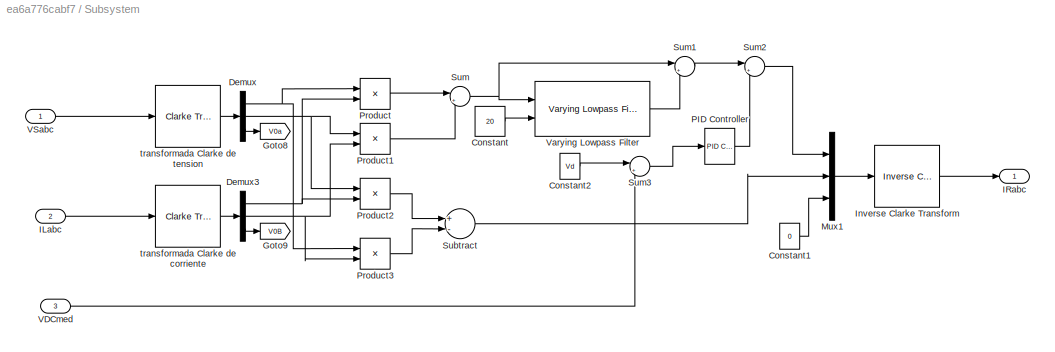
BLOCK [SubSystem] Subsystem
  Ports = [3, 1]
  RequestExecContextInheritance = off
  Variant = off
BLOCK [Constant] Subsystem/Constant
  Value = 20
BLOCK [Constant] Subsystem/Constant1
  Value = 0
BLOCK [Constant] Subsystem/Constant2
  Value = Vd
BLOCK [Demux] Subsystem/Demux
  DisplayOption = bar
  Outputs = 3
  Ports = [1, 3]
BLOCK [Demux] Subsystem/Demux3
  DisplayOption = bar
  Outputs = 3
  Ports = [1, 3]
BLOCK [Goto] Subsystem/Goto8
  GotoTag = V0a
BLOCK [Goto] Subsystem/Goto9
  GotoTag = V0B
BLOCK [Inport] Subsystem/ILabc 
  IconDisplay = Port number
  Port = 2
BLOCK [Outport] Subsystem/IRabc
  IconDisplay = Port number
BLOCK [Reference] Subsystem/Inverse Clarke Transform  REF=peTransforms/Inverse
Clarke Transform
  Ports = [1, 1]
  SourceBlock = peTransforms/Inverse\nClarke Transform
  SourceType = Inverse Clarke Transform
BLOCK [Mux] Subsystem/Mux1
  DisplayOption = bar
  Inputs = 3
  Ports = [3, 1]
BLOCK [Reference] Subsystem/PID Controller  REF=simulink/Continuous/PID Controller
  Ports = [1, 1]
  SourceBlock = simulink/Continuous/PID Controller
  SourceProductBaseCode = SL
  SourceProductName = Simulink
  SourceType = PID 1dof
BLOCK [Product] Subsystem/Product
  InputSameDT = off
  OutDataTypeStr = Inherit: Inherit via internal rule
  Ports = [2, 1]
  RndMeth = Floor
  SaturateOnIntegerOverflow = off
BLOCK [Product] Subsystem/Product1
  InputSameDT = off
  OutDataTypeStr = Inherit: Inherit via internal rule
  Ports = [2, 1]
  RndMeth = Floor
  SaturateOnIntegerOverflow = off
BLOCK [Product] Subsystem/Product2
  InputSameDT = off
  OutDataTypeStr = Inherit: Inherit via internal rule
  Ports = [2, 1]
  RndMeth = Floor
  SaturateOnIntegerOverflow = off
BLOCK [Product] Subsystem/Product3
  InputSameDT = off
  OutDataTypeStr = Inherit: Inherit via internal rule
  Ports = [2, 1]
  RndMeth = Floor
  SaturateOnIntegerOverflow = off
BLOCK [Sum] Subsystem/Subtract
  InputSameDT = off
  Inputs = +-
  OutDataTypeStr = Inherit: Inherit via internal rule
  Ports = [2, 1]
  SaturateOnIntegerOverflow = off
BLOCK [Sum] Subsystem/Sum
  IconShape = round
  InputSameDT = off
  Inputs = |++
  OutDataTypeStr = Inherit: Inherit via internal rule
  Ports = [2, 1]
  SaturateOnIntegerOverflow = off
BLOCK [Sum] Subsystem/Sum1
  IconShape = round
  InputSameDT = off
  Inputs = |+-
  OutDataTypeStr = Inherit: Inherit via internal rule
  Ports = [2, 1]
  SaturateOnIntegerOverflow = off
BLOCK [Sum] Subsystem/Sum2
  IconShape = round
  InputSameDT = off
  Inputs = |+-
  OutDataTypeStr = Inherit: Inherit via internal rule
  Ports = [2, 1]
  SaturateOnIntegerOverflow = off
BLOCK [Sum] Subsystem/Sum3
  IconShape = round
  InputSameDT = off
  Inputs = |+-
  OutDataTypeStr = Inherit: Inherit via internal rule
  Ports = [2, 1]
  SaturateOnIntegerOverflow = off
BLOCK [Inport] Subsystem/VDCmed 
  IconDisplay = Port number
  Port = 3
BLOCK [Inport] Subsystem/VSabc 
  IconDisplay = Port number
BLOCK [Reference] Subsystem/Varying Lowpass Filter  REF=cstblocks/Linear Parameter Varying/Varying Lowpass Filter
  Ports = [2, 1]
  SourceBlock = cstblocks/Linear Parameter Varying/Varying Lowpass Filter
  SourceProductBaseCode = CT
  SourceProductName = Control System Toolbox
  SourceType = Varying Lowpass Filter
BLOCK [Reference] Subsystem/transformada Clarke de corriente  REF=peTransforms/Clarke Transform
  Ports = [1, 1]
  SourceBlock = peTransforms/Clarke Transform
  SourceType = Clarke Transform
BLOCK [Reference] Subsystem/transformada Clarke de tension  REF=peTransforms/Clarke Transform
  Ports = [1, 1]
  SourceBlock = peTransforms/Clarke Transform
  SourceType = Clarke Transform
BLOCK [Reference] Three-Phase V-I Measurement2  REF=powerlib/Measurements/Three-Phase
V-I Measurement
  Ports = [0, 2, 0, 0, 0, 3, 3]
  SourceBlock = powerlib/Measurements/Three-Phase\nV-I Measurement
  SourceProductBaseCode = PS
  SourceProductName = Simscape Power Systems
  SourceType = Three-Phase VI Measurement
BLOCK [TransportDelay] Transport Delay3
  DelayTime = Tm
  Ports = [1, 1]
BLOCK [SubSystem] carga no lineal: rectificador trifásico 
  Ports = [0, 0, 0, 0, 0, 4]
  RequestExecContextInheritance = off
  Variant = off
BLOCK [PMIOPort] carga no lineal: rectificador trifásico /A 
  Port = 1
  Side = Left
BLOCK [PMIOPort] carga no lineal: rectificador trifásico /B
  Port = 2
  Side = Left
BLOCK [PMIOPort] carga no lineal: rectificador trifásico /C 
  Port = 3
  Side = Left
BLOCK [Reference] carga no lineal: rectificador trifásico /Cap_filtrado   REF=powerlib/Elements/Series RLC Branch
  Ports = [0, 0, 0, 0, 0, 1, 1]
  SourceBlock = powerlib/Elements/Series RLC Branch
  SourceProductBaseCode = PS
  SourceProductName = Simscape Power Systems
  SourceType = Series RLC Branch
BLOCK [Reference] carga no lineal: rectificador trifásico /Diode  REF=powerlib/Power
Electronics/Diode
  Ports = [0, 0, 0, 0, 0, 1, 1]
  SourceBlock = powerlib/Power\nElectronics/Diode
  SourceProductBaseCode = PS
  SourceProductName = Simscape Power Systems
  SourceType = Diode
BLOCK [Reference] carga no lineal: rectificador trifásico /Diode1  REF=powerlib/Power
Electronics/Diode
  Ports = [0, 0, 0, 0, 0, 1, 1]
  SourceBlock = powerlib/Power\nElectronics/Diode
  SourceProductBaseCode = PS
  SourceProductName = Simscape Power Systems
  SourceType = Diode
BLOCK [Reference] carga no lineal: rectificador trifásico /Diode2  REF=powerlib/Power
Electronics/Diode
  Ports = [0, 0, 0, 0, 0, 1, 1]
  SourceBlock = powerlib/Power\nElectronics/Diode
  SourceProductBaseCode = PS
  SourceProductName = Simscape Power Systems
  SourceType = Diode
BLOCK [Reference] carga no lineal: rectificador trifásico /Diode3  REF=powerlib/Power
Electronics/Diode
  Ports = [0, 0, 0, 0, 0, 1, 1]
  SourceBlock = powerlib/Power\nElectronics/Diode
  SourceProductBaseCode = PS
  SourceProductName = Simscape Power Systems
  SourceType = Diode
BLOCK [Reference] carga no lineal: rectificador trifásico /Diode4  REF=powerlib/Power
Electronics/Diode
  Ports = [0, 0, 0, 0, 0, 1, 1]
  SourceBlock = powerlib/Power\nElectronics/Diode
  SourceProductBaseCode = PS
  SourceProductName = Simscape Power Systems
  SourceType = Diode
BLOCK [Reference] carga no lineal: rectificador trifásico /Diode5  REF=powerlib/Power
Electronics/Diode
  Ports = [0, 0, 0, 0, 0, 1, 1]
  SourceBlock = powerlib/Power\nElectronics/Diode
  SourceProductBaseCode = PS
  SourceProductName = Simscape Power Systems
  SourceType = Diode
BLOCK [PMIOPort] carga no lineal: rectificador trifásico /N 
  Port = 4
  Side = Left
BLOCK [Reference] carga no lineal: rectificador trifásico /RL   REF=powerlib/Elements/Series RLC Branch
  Ports = [0, 0, 0, 0, 0, 1, 1]
  SourceBlock = powerlib/Elements/Series RLC Branch
  SourceProductBaseCode = PS
  SourceProductName = Simscape Power Systems
  SourceType = Series RLC Branch
BLOCK [Reference] powergui  REF=powerlib/powergui
  Ports = []
  Priority = 1
  SourceBlock = powerlib/powergui
  SourceProductBaseCode = PS
  SourceProductName = Simscape Power Systems
  SourceType = PSB option menu block
ANNOTATION (root): PCC
LINE APF on:1 -> Contactor de conexión del filtro activo :1
LINE Clock6:1 -> Mux5:1
NET Contactor de conexión del filtro activo /g:1 -> Contactor de conexión del filtro activo /Ideal Switch1:1, Contactor de conexión del filtro activo /Ideal Switch2:1, Contactor de conexión del filtro activo /Ideal Switch3:1, Contactor de conexión del filtro activo /Ideal Switch:1
LINE Convertidor multinivel CHB/Demux1:1 -> Convertidor multinivel CHB/Single-Phase CHB2:1
LINE Convertidor multinivel CHB/Demux1:2 -> Convertidor multinivel CHB/Single-Phase CHB2:2
LINE Convertidor multinivel CHB/Demux1:3 -> Convertidor multinivel CHB/Single-Phase CHB2:3
LINE Convertidor multinivel CHB/Demux1:4 -> Convertidor multinivel CHB/Single-Phase CHB2:4
LINE Convertidor multinivel CHB/Demux1:5 -> Convertidor multinivel CHB/Single-Phase CHB2:5
LINE Convertidor multinivel CHB/Demux1:6 -> Convertidor multinivel CHB/Single-Phase CHB2:6
LINE Convertidor multinivel CHB/Demux2:1 -> Convertidor multinivel CHB/Single-Phase CHB3:1
LINE Convertidor multinivel CHB/Demux2:2 -> Convertidor multinivel CHB/Single-Phase CHB3:2
LINE Convertidor multinivel CHB/Demux2:3 -> Convertidor multinivel CHB/Single-Phase CHB3:3
LINE Convertidor multinivel CHB/Demux2:4 -> Convertidor multinivel CHB/Single-Phase CHB3:4
LINE Convertidor multinivel CHB/Demux2:5 -> Convertidor multinivel CHB/Single-Phase CHB3:5
LINE Convertidor multinivel CHB/Demux2:6 -> Convertidor multinivel CHB/Single-Phase CHB3:6
LINE Convertidor multinivel CHB/Demux:1 -> Convertidor multinivel CHB/Single-Phase CHB1:1
LINE Convertidor multinivel CHB/Demux:2 -> Convertidor multinivel CHB/Single-Phase CHB1:2
LINE Convertidor multinivel CHB/Demux:3 -> Convertidor multinivel CHB/Single-Phase CHB1:3
LINE Convertidor multinivel CHB/Demux:4 -> Convertidor multinivel CHB/Single-Phase CHB1:4
LINE Convertidor multinivel CHB/Demux:5 -> Convertidor multinivel CHB/Single-Phase CHB1:5
LINE Convertidor multinivel CHB/Demux:6 -> Convertidor multinivel CHB/Single-Phase CHB1:6
LINE Convertidor multinivel CHB/Sa:1 -> Convertidor multinivel CHB/Demux:1
LINE Convertidor multinivel CHB/Sb:1 -> Convertidor multinivel CHB/Demux1:1
LINE Convertidor multinivel CHB/Sc:1 -> Convertidor multinivel CHB/Demux2:1
NET Convertidor multinivel CHB/Single-Phase CHB1/DC-Link1/Constant:1 -> Convertidor multinivel CHB/Single-Phase CHB1/DC-Link1/Ideal Switch:1, Convertidor multinivel CHB/Single-Phase CHB1/DC-Link1/Logical Operator2:1
LINE Convertidor multinivel CHB/Single-Phase CHB1/DC-Link1/Logical Operator2:1 -> Convertidor multinivel CHB/Single-Phase CHB1/DC-Link1/Ideal Switch1:1
LINE Convertidor multinivel CHB/Single-Phase CHB1/DC-Link1/Vcan3:1 -> Convertidor multinivel CHB/Single-Phase CHB1/DC-Link1/Goto16:1
NET Convertidor multinivel CHB/Single-Phase CHB1/DC-Link2/Constant:1 -> Convertidor multinivel CHB/Single-Phase CHB1/DC-Link2/Ideal Switch:1, Convertidor multinivel CHB/Single-Phase CHB1/DC-Link2/Logical Operator2:1
LINE Convertidor multinivel CHB/Single-Phase CHB1/DC-Link2/Logical Operator2:1 -> Convertidor multinivel CHB/Single-Phase CHB1/DC-Link2/Ideal Switch1:1
LINE Convertidor multinivel CHB/Single-Phase CHB1/DC-Link2/Vcan3:1 -> Convertidor multinivel CHB/Single-Phase CHB1/DC-Link2/Goto16:1
NET Convertidor multinivel CHB/Single-Phase CHB1/DC-Link3/Constant:1 -> Convertidor multinivel CHB/Single-Phase CHB1/DC-Link3/Ideal Switch:1, Convertidor multinivel CHB/Single-Phase CHB1/DC-Link3/Logical Operator2:1
LINE Convertidor multinivel CHB/Single-Phase CHB1/DC-Link3/Logical Operator2:1 -> Convertidor multinivel CHB/Single-Phase CHB1/DC-Link3/Ideal Switch1:1
LINE Convertidor multinivel CHB/Single-Phase CHB1/DC-Link3/Vcan3:1 -> Convertidor multinivel CHB/Single-Phase CHB1/DC-Link3/Goto16:1
LINE Convertidor multinivel CHB/Single-Phase CHB1/H-Bridge Cell1/IGBT//Diode1:1 -> Convertidor multinivel CHB/Single-Phase CHB1/H-Bridge Cell1/T1:1
LINE Convertidor multinivel CHB/Single-Phase CHB1/H-Bridge Cell1/IGBT//Diode2:1 -> Convertidor multinivel CHB/Single-Phase CHB1/H-Bridge Cell1/T2:1
LINE Convertidor multinivel CHB/Single-Phase CHB1/H-Bridge Cell1/IGBT//Diode3:1 -> Convertidor multinivel CHB/Single-Phase CHB1/H-Bridge Cell1/T3:1
LINE Convertidor multinivel CHB/Single-Phase CHB1/H-Bridge Cell1/IGBT//Diode4:1 -> Convertidor multinivel CHB/Single-Phase CHB1/H-Bridge Cell1/T4:1
LINE Convertidor multinivel CHB/Single-Phase CHB1/H-Bridge Cell1/si1:1 -> Convertidor multinivel CHB/Single-Phase CHB1/H-Bridge Cell1/IGBT//Diode1:1
LINE Convertidor multinivel CHB/Single-Phase CHB1/H-Bridge Cell1/si2:1 -> Convertidor multinivel CHB/Single-Phase CHB1/H-Bridge Cell1/IGBT//Diode2:1
LINE Convertidor multinivel CHB/Single-Phase CHB1/H-Bridge Cell1/si3:1 -> Convertidor multinivel CHB/Single-Phase CHB1/H-Bridge Cell1/IGBT//Diode3:1
LINE Convertidor multinivel CHB/Single-Phase CHB1/H-Bridge Cell1/si4:1 -> Convertidor multinivel CHB/Single-Phase CHB1/H-Bridge Cell1/IGBT//Diode4:1
LINE Convertidor multinivel CHB/Single-Phase CHB1/H-Bridge Cell2/IGBT//Diode1:1 -> Convertidor multinivel CHB/Single-Phase CHB1/H-Bridge Cell2/T1:1
LINE Convertidor multinivel CHB/Single-Phase CHB1/H-Bridge Cell2/IGBT//Diode2:1 -> Convertidor multinivel CHB/Single-Phase CHB1/H-Bridge Cell2/T2:1
LINE Convertidor multinivel CHB/Single-Phase CHB1/H-Bridge Cell2/IGBT//Diode3:1 -> Convertidor multinivel CHB/Single-Phase CHB1/H-Bridge Cell2/T3:1
LINE Convertidor multinivel CHB/Single-Phase CHB1/H-Bridge Cell2/IGBT//Diode4:1 -> Convertidor multinivel CHB/Single-Phase CHB1/H-Bridge Cell2/T4:1
LINE Convertidor multinivel CHB/Single-Phase CHB1/H-Bridge Cell2/si1:1 -> Convertidor multinivel CHB/Single-Phase CHB1/H-Bridge Cell2/IGBT//Diode1:1
LINE Convertidor multinivel CHB/Single-Phase CHB1/H-Bridge Cell2/si2:1 -> Convertidor multinivel CHB/Single-Phase CHB1/H-Bridge Cell2/IGBT//Diode2:1
LINE Convertidor multinivel CHB/Single-Phase CHB1/H-Bridge Cell2/si3:1 -> Convertidor multinivel CHB/Single-Phase CHB1/H-Bridge Cell2/IGBT//Diode3:1
LINE Convertidor multinivel CHB/Single-Phase CHB1/H-Bridge Cell2/si4:1 -> Convertidor multinivel CHB/Single-Phase CHB1/H-Bridge Cell2/IGBT//Diode4:1
LINE Convertidor multinivel CHB/Single-Phase CHB1/H-Bridge Cell3/IGBT//Diode1:1 -> Convertidor multinivel CHB/Single-Phase CHB1/H-Bridge Cell3/T1:1
LINE Convertidor multinivel CHB/Single-Phase CHB1/H-Bridge Cell3/IGBT//Diode2:1 -> Convertidor multinivel CHB/Single-Phase CHB1/H-Bridge Cell3/T2:1
LINE Convertidor multinivel CHB/Single-Phase CHB1/H-Bridge Cell3/IGBT//Diode3:1 -> Convertidor multinivel CHB/Single-Phase CHB1/H-Bridge Cell3/T3:1
LINE Convertidor multinivel CHB/Single-Phase CHB1/H-Bridge Cell3/IGBT//Diode4:1 -> Convertidor multinivel CHB/Single-Phase CHB1/H-Bridge Cell3/T4:1
LINE Convertidor multinivel CHB/Single-Phase CHB1/H-Bridge Cell3/si1:1 -> Convertidor multinivel CHB/Single-Phase CHB1/H-Bridge Cell3/IGBT//Diode1:1
LINE Convertidor multinivel CHB/Single-Phase CHB1/H-Bridge Cell3/si2:1 -> Convertidor multinivel CHB/Single-Phase CHB1/H-Bridge Cell3/IGBT//Diode2:1
LINE Convertidor multinivel CHB/Single-Phase CHB1/H-Bridge Cell3/si3:1 -> Convertidor multinivel CHB/Single-Phase CHB1/H-Bridge Cell3/IGBT//Diode3:1
LINE Convertidor multinivel CHB/Single-Phase CHB1/H-Bridge Cell3/si4:1 -> Convertidor multinivel CHB/Single-Phase CHB1/H-Bridge Cell3/IGBT//Diode4:1
LINE Convertidor multinivel CHB/Single-Phase CHB1/H-Bridge Driver1/Logical Operator2:1 -> Convertidor multinivel CHB/Single-Phase CHB1/H-Bridge Driver1/2:1
LINE Convertidor multinivel CHB/Single-Phase CHB1/H-Bridge Driver1/Logical Operator3:1 -> Convertidor multinivel CHB/Single-Phase CHB1/H-Bridge Driver1/4:1
NET Convertidor multinivel CHB/Single-Phase CHB1/H-Bridge Driver1/si1:1 -> Convertidor multinivel CHB/Single-Phase CHB1/H-Bridge Driver1/1:1, Convertidor multinivel CHB/Single-Phase CHB1/H-Bridge Driver1/Logical Operator2:1
NET Convertidor multinivel CHB/Single-Phase CHB1/H-Bridge Driver1/si3:1 -> Convertidor multinivel CHB/Single-Phase CHB1/H-Bridge Driver1/3:1, Convertidor multinivel CHB/Single-Phase CHB1/H-Bridge Driver1/Logical Operator3:1
LINE Convertidor multinivel CHB/Single-Phase CHB1/H-Bridge Driver1:1 -> Convertidor multinivel CHB/Single-Phase CHB1/H-Bridge Cell1:1
LINE Convertidor multinivel CHB/Single-Phase CHB1/H-Bridge Driver1:2 -> Convertidor multinivel CHB/Single-Phase CHB1/H-Bridge Cell1:2
LINE Convertidor multinivel CHB/Single-Phase CHB1/H-Bridge Driver1:3 -> Convertidor multinivel CHB/Single-Phase CHB1/H-Bridge Cell1:3
LINE Convertidor multinivel CHB/Single-Phase CHB1/H-Bridge Driver1:4 -> Convertidor multinivel CHB/Single-Phase CHB1/H-Bridge Cell1:4
LINE Convertidor multinivel CHB/Single-Phase CHB1/H-Bridge Driver2/Logical Operator2:1 -> Convertidor multinivel CHB/Single-Phase CHB1/H-Bridge Driver2/2:1
LINE Convertidor multinivel CHB/Single-Phase CHB1/H-Bridge Driver2/Logical Operator3:1 -> Convertidor multinivel CHB/Single-Phase CHB1/H-Bridge Driver2/4:1
NET Convertidor multinivel CHB/Single-Phase CHB1/H-Bridge Driver2/si1:1 -> Convertidor multinivel CHB/Single-Phase CHB1/H-Bridge Driver2/1:1, Convertidor multinivel CHB/Single-Phase CHB1/H-Bridge Driver2/Logical Operator2:1
NET Convertidor multinivel CHB/Single-Phase CHB1/H-Bridge Driver2/si3:1 -> Convertidor multinivel CHB/Single-Phase CHB1/H-Bridge Driver2/3:1, Convertidor multinivel CHB/Single-Phase CHB1/H-Bridge Driver2/Logical Operator3:1
LINE Convertidor multinivel CHB/Single-Phase CHB1/H-Bridge Driver2:1 -> Convertidor multinivel CHB/Single-Phase CHB1/H-Bridge Cell2:1
LINE Convertidor multinivel CHB/Single-Phase CHB1/H-Bridge Driver2:2 -> Convertidor multinivel CHB/Single-Phase CHB1/H-Bridge Cell2:2
LINE Convertidor multinivel CHB/Single-Phase CHB1/H-Bridge Driver2:3 -> Convertidor multinivel CHB/Single-Phase CHB1/H-Bridge Cell2:3
LINE Convertidor multinivel CHB/Single-Phase CHB1/H-Bridge Driver2:4 -> Convertidor multinivel CHB/Single-Phase CHB1/H-Bridge Cell2:4
LINE Convertidor multinivel CHB/Single-Phase CHB1/H-Bridge Driver3/Logical Operator2:1 -> Convertidor multinivel CHB/Single-Phase CHB1/H-Bridge Driver3/2:1
LINE Convertidor multinivel CHB/Single-Phase CHB1/H-Bridge Driver3/Logical Operator3:1 -> Convertidor multinivel CHB/Single-Phase CHB1/H-Bridge Driver3/4:1
NET Convertidor multinivel CHB/Single-Phase CHB1/H-Bridge Driver3/si1:1 -> Convertidor multinivel CHB/Single-Phase CHB1/H-Bridge Driver3/1:1, Convertidor multinivel CHB/Single-Phase CHB1/H-Bridge Driver3/Logical Operator2:1
NET Convertidor multinivel CHB/Single-Phase CHB1/H-Bridge Driver3/si3:1 -> Convertidor multinivel CHB/Single-Phase CHB1/H-Bridge Driver3/3:1, Convertidor multinivel CHB/Single-Phase CHB1/H-Bridge Driver3/Logical Operator3:1
LINE Convertidor multinivel CHB/Single-Phase CHB1/H-Bridge Driver3:1 -> Convertidor multinivel CHB/Single-Phase CHB1/H-Bridge Cell3:1
LINE Convertidor multinivel CHB/Single-Phase CHB1/H-Bridge Driver3:2 -> Convertidor multinivel CHB/Single-Phase CHB1/H-Bridge Cell3:2
LINE Convertidor multinivel CHB/Single-Phase CHB1/H-Bridge Driver3:3 -> Convertidor multinivel CHB/Single-Phase CHB1/H-Bridge Cell3:3
LINE Convertidor multinivel CHB/Single-Phase CHB1/H-Bridge Driver3:4 -> Convertidor multinivel CHB/Single-Phase CHB1/H-Bridge Cell3:4
LINE Convertidor multinivel CHB/Single-Phase CHB1/sf11:1 -> Convertidor multinivel CHB/Single-Phase CHB1/H-Bridge Driver1:1
LINE Convertidor multinivel CHB/Single-Phase CHB1/sf13:1 -> Convertidor multinivel CHB/Single-Phase CHB1/H-Bridge Driver1:2
LINE Convertidor multinivel CHB/Single-Phase CHB1/sf21:1 -> Convertidor multinivel CHB/Single-Phase CHB1/H-Bridge Driver2:1
LINE Convertidor multinivel CHB/Single-Phase CHB1/sf23:1 -> Convertidor multinivel CHB/Single-Phase CHB1/H-Bridge Driver2:2
LINE Convertidor multinivel CHB/Single-Phase CHB1/sf31:1 -> Convertidor multinivel CHB/Single-Phase CHB1/H-Bridge Driver3:1
LINE Convertidor multinivel CHB/Single-Phase CHB1/sf33:1 -> Convertidor multinivel CHB/Single-Phase CHB1/H-Bridge Driver3:2
NET Convertidor multinivel CHB/Single-Phase CHB2/DC-Link1/Constant:1 -> Convertidor multinivel CHB/Single-Phase CHB2/DC-Link1/Ideal Switch:1, Convertidor multinivel CHB/Single-Phase CHB2/DC-Link1/Logical Operator2:1
LINE Convertidor multinivel CHB/Single-Phase CHB2/DC-Link1/Logical Operator2:1 -> Convertidor multinivel CHB/Single-Phase CHB2/DC-Link1/Ideal Switch1:1
LINE Convertidor multinivel CHB/Single-Phase CHB2/DC-Link1/Vcan3:1 -> Convertidor multinivel CHB/Single-Phase CHB2/DC-Link1/Goto16:1
NET Convertidor multinivel CHB/Single-Phase CHB2/DC-Link2/Constant:1 -> Convertidor multinivel CHB/Single-Phase CHB2/DC-Link2/Ideal Switch:1, Convertidor multinivel CHB/Single-Phase CHB2/DC-Link2/Logical Operator2:1
LINE Convertidor multinivel CHB/Single-Phase CHB2/DC-Link2/Logical Operator2:1 -> Convertidor multinivel CHB/Single-Phase CHB2/DC-Link2/Ideal Switch1:1
LINE Convertidor multinivel CHB/Single-Phase CHB2/DC-Link2/Vcan3:1 -> Convertidor multinivel CHB/Single-Phase CHB2/DC-Link2/Goto16:1
NET Convertidor multinivel CHB/Single-Phase CHB2/DC-Link3/Constant:1 -> Convertidor multinivel CHB/Single-Phase CHB2/DC-Link3/Ideal Switch:1, Convertidor multinivel CHB/Single-Phase CHB2/DC-Link3/Logical Operator2:1
LINE Convertidor multinivel CHB/Single-Phase CHB2/DC-Link3/Logical Operator2:1 -> Convertidor multinivel CHB/Single-Phase CHB2/DC-Link3/Ideal Switch1:1
LINE Convertidor multinivel CHB/Single-Phase CHB2/DC-Link3/Vcan3:1 -> Convertidor multinivel CHB/Single-Phase CHB2/DC-Link3/Goto16:1
LINE Convertidor multinivel CHB/Single-Phase CHB2/H-Bridge Cell1/IGBT//Diode1:1 -> Convertidor multinivel CHB/Single-Phase CHB2/H-Bridge Cell1/T1:1
LINE Convertidor multinivel CHB/Single-Phase CHB2/H-Bridge Cell1/IGBT//Diode2:1 -> Convertidor multinivel CHB/Single-Phase CHB2/H-Bridge Cell1/T2:1
LINE Convertidor multinivel CHB/Single-Phase CHB2/H-Bridge Cell1/IGBT//Diode3:1 -> Convertidor multinivel CHB/Single-Phase CHB2/H-Bridge Cell1/T3:1
LINE Convertidor multinivel CHB/Single-Phase CHB2/H-Bridge Cell1/IGBT//Diode4:1 -> Convertidor multinivel CHB/Single-Phase CHB2/H-Bridge Cell1/T4:1
LINE Convertidor multinivel CHB/Single-Phase CHB2/H-Bridge Cell1/si1:1 -> Convertidor multinivel CHB/Single-Phase CHB2/H-Bridge Cell1/IGBT//Diode1:1
LINE Convertidor multinivel CHB/Single-Phase CHB2/H-Bridge Cell1/si2:1 -> Convertidor multinivel CHB/Single-Phase CHB2/H-Bridge Cell1/IGBT//Diode2:1
LINE Convertidor multinivel CHB/Single-Phase CHB2/H-Bridge Cell1/si3:1 -> Convertidor multinivel CHB/Single-Phase CHB2/H-Bridge Cell1/IGBT//Diode3:1
LINE Convertidor multinivel CHB/Single-Phase CHB2/H-Bridge Cell1/si4:1 -> Convertidor multinivel CHB/Single-Phase CHB2/H-Bridge Cell1/IGBT//Diode4:1
LINE Convertidor multinivel CHB/Single-Phase CHB2/H-Bridge Cell2/IGBT//Diode1:1 -> Convertidor multinivel CHB/Single-Phase CHB2/H-Bridge Cell2/T1:1
LINE Convertidor multinivel CHB/Single-Phase CHB2/H-Bridge Cell2/IGBT//Diode2:1 -> Convertidor multinivel CHB/Single-Phase CHB2/H-Bridge Cell2/T2:1
LINE Convertidor multinivel CHB/Single-Phase CHB2/H-Bridge Cell2/IGBT//Diode3:1 -> Convertidor multinivel CHB/Single-Phase CHB2/H-Bridge Cell2/T3:1
LINE Convertidor multinivel CHB/Single-Phase CHB2/H-Bridge Cell2/IGBT//Diode4:1 -> Convertidor multinivel CHB/Single-Phase CHB2/H-Bridge Cell2/T4:1
LINE Convertidor multinivel CHB/Single-Phase CHB2/H-Bridge Cell2/si1:1 -> Convertidor multinivel CHB/Single-Phase CHB2/H-Bridge Cell2/IGBT//Diode1:1
LINE Convertidor multinivel CHB/Single-Phase CHB2/H-Bridge Cell2/si2:1 -> Convertidor multinivel CHB/Single-Phase CHB2/H-Bridge Cell2/IGBT//Diode2:1
LINE Convertidor multinivel CHB/Single-Phase CHB2/H-Bridge Cell2/si3:1 -> Convertidor multinivel CHB/Single-Phase CHB2/H-Bridge Cell2/IGBT//Diode3:1
LINE Convertidor multinivel CHB/Single-Phase CHB2/H-Bridge Cell2/si4:1 -> Convertidor multinivel CHB/Single-Phase CHB2/H-Bridge Cell2/IGBT//Diode4:1
LINE Convertidor multinivel CHB/Single-Phase CHB2/H-Bridge Cell3/IGBT//Diode1:1 -> Convertidor multinivel CHB/Single-Phase CHB2/H-Bridge Cell3/T1:1
LINE Convertidor multinivel CHB/Single-Phase CHB2/H-Bridge Cell3/IGBT//Diode2:1 -> Convertidor multinivel CHB/Single-Phase CHB2/H-Bridge Cell3/T2:1
LINE Convertidor multinivel CHB/Single-Phase CHB2/H-Bridge Cell3/IGBT//Diode3:1 -> Convertidor multinivel CHB/Single-Phase CHB2/H-Bridge Cell3/T3:1
LINE Convertidor multinivel CHB/Single-Phase CHB2/H-Bridge Cell3/IGBT//Diode4:1 -> Convertidor multinivel CHB/Single-Phase CHB2/H-Bridge Cell3/T4:1
LINE Convertidor multinivel CHB/Single-Phase CHB2/H-Bridge Cell3/si1:1 -> Convertidor multinivel CHB/Single-Phase CHB2/H-Bridge Cell3/IGBT//Diode1:1
LINE Convertidor multinivel CHB/Single-Phase CHB2/H-Bridge Cell3/si2:1 -> Convertidor multinivel CHB/Single-Phase CHB2/H-Bridge Cell3/IGBT//Diode2:1
LINE Convertidor multinivel CHB/Single-Phase CHB2/H-Bridge Cell3/si3:1 -> Convertidor multinivel CHB/Single-Phase CHB2/H-Bridge Cell3/IGBT//Diode3:1
LINE Convertidor multinivel CHB/Single-Phase CHB2/H-Bridge Cell3/si4:1 -> Convertidor multinivel CHB/Single-Phase CHB2/H-Bridge Cell3/IGBT//Diode4:1
LINE Convertidor multinivel CHB/Single-Phase CHB2/H-Bridge Driver1/Logical Operator2:1 -> Convertidor multinivel CHB/Single-Phase CHB2/H-Bridge Driver1/2:1
LINE Convertidor multinivel CHB/Single-Phase CHB2/H-Bridge Driver1/Logical Operator3:1 -> Convertidor multinivel CHB/Single-Phase CHB2/H-Bridge Driver1/4:1
NET Convertidor multinivel CHB/Single-Phase CHB2/H-Bridge Driver1/si1:1 -> Convertidor multinivel CHB/Single-Phase CHB2/H-Bridge Driver1/1:1, Convertidor multinivel CHB/Single-Phase CHB2/H-Bridge Driver1/Logical Operator2:1
NET Convertidor multinivel CHB/Single-Phase CHB2/H-Bridge Driver1/si3:1 -> Convertidor multinivel CHB/Single-Phase CHB2/H-Bridge Driver1/3:1, Convertidor multinivel CHB/Single-Phase CHB2/H-Bridge Driver1/Logical Operator3:1
LINE Convertidor multinivel CHB/Single-Phase CHB2/H-Bridge Driver1:1 -> Convertidor multinivel CHB/Single-Phase CHB2/H-Bridge Cell1:1
LINE Convertidor multinivel CHB/Single-Phase CHB2/H-Bridge Driver1:2 -> Convertidor multinivel CHB/Single-Phase CHB2/H-Bridge Cell1:2
LINE Convertidor multinivel CHB/Single-Phase CHB2/H-Bridge Driver1:3 -> Convertidor multinivel CHB/Single-Phase CHB2/H-Bridge Cell1:3
LINE Convertidor multinivel CHB/Single-Phase CHB2/H-Bridge Driver1:4 -> Convertidor multinivel CHB/Single-Phase CHB2/H-Bridge Cell1:4
LINE Convertidor multinivel CHB/Single-Phase CHB2/H-Bridge Driver2/Logical Operator2:1 -> Convertidor multinivel CHB/Single-Phase CHB2/H-Bridge Driver2/2:1
LINE Convertidor multinivel CHB/Single-Phase CHB2/H-Bridge Driver2/Logical Operator3:1 -> Convertidor multinivel CHB/Single-Phase CHB2/H-Bridge Driver2/4:1
NET Convertidor multinivel CHB/Single-Phase CHB2/H-Bridge Driver2/si1:1 -> Convertidor multinivel CHB/Single-Phase CHB2/H-Bridge Driver2/1:1, Convertidor multinivel CHB/Single-Phase CHB2/H-Bridge Driver2/Logical Operator2:1
NET Convertidor multinivel CHB/Single-Phase CHB2/H-Bridge Driver2/si3:1 -> Convertidor multinivel CHB/Single-Phase CHB2/H-Bridge Driver2/3:1, Convertidor multinivel CHB/Single-Phase CHB2/H-Bridge Driver2/Logical Operator3:1
LINE Convertidor multinivel CHB/Single-Phase CHB2/H-Bridge Driver2:1 -> Convertidor multinivel CHB/Single-Phase CHB2/H-Bridge Cell2:1
LINE Convertidor multinivel CHB/Single-Phase CHB2/H-Bridge Driver2:2 -> Convertidor multinivel CHB/Single-Phase CHB2/H-Bridge Cell2:2
LINE Convertidor multinivel CHB/Single-Phase CHB2/H-Bridge Driver2:3 -> Convertidor multinivel CHB/Single-Phase CHB2/H-Bridge Cell2:3
LINE Convertidor multinivel CHB/Single-Phase CHB2/H-Bridge Driver2:4 -> Convertidor multinivel CHB/Single-Phase CHB2/H-Bridge Cell2:4
LINE Convertidor multinivel CHB/Single-Phase CHB2/H-Bridge Driver3/Logical Operator2:1 -> Convertidor multinivel CHB/Single-Phase CHB2/H-Bridge Driver3/2:1
LINE Convertidor multinivel CHB/Single-Phase CHB2/H-Bridge Driver3/Logical Operator3:1 -> Convertidor multinivel CHB/Single-Phase CHB2/H-Bridge Driver3/4:1
NET Convertidor multinivel CHB/Single-Phase CHB2/H-Bridge Driver3/si1:1 -> Convertidor multinivel CHB/Single-Phase CHB2/H-Bridge Driver3/1:1, Convertidor multinivel CHB/Single-Phase CHB2/H-Bridge Driver3/Logical Operator2:1
NET Convertidor multinivel CHB/Single-Phase CHB2/H-Bridge Driver3/si3:1 -> Convertidor multinivel CHB/Single-Phase CHB2/H-Bridge Driver3/3:1, Convertidor multinivel CHB/Single-Phase CHB2/H-Bridge Driver3/Logical Operator3:1
LINE Convertidor multinivel CHB/Single-Phase CHB2/H-Bridge Driver3:1 -> Convertidor multinivel CHB/Single-Phase CHB2/H-Bridge Cell3:1
LINE Convertidor multinivel CHB/Single-Phase CHB2/H-Bridge Driver3:2 -> Convertidor multinivel CHB/Single-Phase CHB2/H-Bridge Cell3:2
LINE Convertidor multinivel CHB/Single-Phase CHB2/H-Bridge Driver3:3 -> Convertidor multinivel CHB/Single-Phase CHB2/H-Bridge Cell3:3
LINE Convertidor multinivel CHB/Single-Phase CHB2/H-Bridge Driver3:4 -> Convertidor multinivel CHB/Single-Phase CHB2/H-Bridge Cell3:4
LINE Convertidor multinivel CHB/Single-Phase CHB2/sf11:1 -> Convertidor multinivel CHB/Single-Phase CHB2/H-Bridge Driver1:1
LINE Convertidor multinivel CHB/Single-Phase CHB2/sf13:1 -> Convertidor multinivel CHB/Single-Phase CHB2/H-Bridge Driver1:2
LINE Convertidor multinivel CHB/Single-Phase CHB2/sf21:1 -> Convertidor multinivel CHB/Single-Phase CHB2/H-Bridge Driver2:1
LINE Convertidor multinivel CHB/Single-Phase CHB2/sf23:1 -> Convertidor multinivel CHB/Single-Phase CHB2/H-Bridge Driver2:2
LINE Convertidor multinivel CHB/Single-Phase CHB2/sf31:1 -> Convertidor multinivel CHB/Single-Phase CHB2/H-Bridge Driver3:1
LINE Convertidor multinivel CHB/Single-Phase CHB2/sf33:1 -> Convertidor multinivel CHB/Single-Phase CHB2/H-Bridge Driver3:2
NET Convertidor multinivel CHB/Single-Phase CHB3/DC-Link1/Constant:1 -> Convertidor multinivel CHB/Single-Phase CHB3/DC-Link1/Ideal Switch:1, Convertidor multinivel CHB/Single-Phase CHB3/DC-Link1/Logical Operator2:1
LINE Convertidor multinivel CHB/Single-Phase CHB3/DC-Link1/Logical Operator2:1 -> Convertidor multinivel CHB/Single-Phase CHB3/DC-Link1/Ideal Switch1:1
LINE Convertidor multinivel CHB/Single-Phase CHB3/DC-Link1/Vcan3:1 -> Convertidor multinivel CHB/Single-Phase CHB3/DC-Link1/Goto16:1
NET Convertidor multinivel CHB/Single-Phase CHB3/DC-Link2/Constant:1 -> Convertidor multinivel CHB/Single-Phase CHB3/DC-Link2/Ideal Switch:1, Convertidor multinivel CHB/Single-Phase CHB3/DC-Link2/Logical Operator2:1
LINE Convertidor multinivel CHB/Single-Phase CHB3/DC-Link2/Logical Operator2:1 -> Convertidor multinivel CHB/Single-Phase CHB3/DC-Link2/Ideal Switch1:1
LINE Convertidor multinivel CHB/Single-Phase CHB3/DC-Link2/Vcan3:1 -> Convertidor multinivel CHB/Single-Phase CHB3/DC-Link2/Goto16:1
NET Convertidor multinivel CHB/Single-Phase CHB3/DC-Link3/Constant:1 -> Convertidor multinivel CHB/Single-Phase CHB3/DC-Link3/Ideal Switch:1, Convertidor multinivel CHB/Single-Phase CHB3/DC-Link3/Logical Operator2:1
LINE Convertidor multinivel CHB/Single-Phase CHB3/DC-Link3/Logical Operator2:1 -> Convertidor multinivel CHB/Single-Phase CHB3/DC-Link3/Ideal Switch1:1
LINE Convertidor multinivel CHB/Single-Phase CHB3/DC-Link3/Vcan3:1 -> Convertidor multinivel CHB/Single-Phase CHB3/DC-Link3/Goto16:1
LINE Convertidor multinivel CHB/Single-Phase CHB3/H-Bridge Cell1/IGBT//Diode1:1 -> Convertidor multinivel CHB/Single-Phase CHB3/H-Bridge Cell1/T1:1
LINE Convertidor multinivel CHB/Single-Phase CHB3/H-Bridge Cell1/IGBT//Diode2:1 -> Convertidor multinivel CHB/Single-Phase CHB3/H-Bridge Cell1/T2:1
LINE Convertidor multinivel CHB/Single-Phase CHB3/H-Bridge Cell1/IGBT//Diode3:1 -> Convertidor multinivel CHB/Single-Phase CHB3/H-Bridge Cell1/T3:1
LINE Convertidor multinivel CHB/Single-Phase CHB3/H-Bridge Cell1/IGBT//Diode4:1 -> Convertidor multinivel CHB/Single-Phase CHB3/H-Bridge Cell1/T4:1
LINE Convertidor multinivel CHB/Single-Phase CHB3/H-Bridge Cell1/si1:1 -> Convertidor multinivel CHB/Single-Phase CHB3/H-Bridge Cell1/IGBT//Diode1:1
LINE Convertidor multinivel CHB/Single-Phase CHB3/H-Bridge Cell1/si2:1 -> Convertidor multinivel CHB/Single-Phase CHB3/H-Bridge Cell1/IGBT//Diode2:1
LINE Convertidor multinivel CHB/Single-Phase CHB3/H-Bridge Cell1/si3:1 -> Convertidor multinivel CHB/Single-Phase CHB3/H-Bridge Cell1/IGBT//Diode3:1
LINE Convertidor multinivel CHB/Single-Phase CHB3/H-Bridge Cell1/si4:1 -> Convertidor multinivel CHB/Single-Phase CHB3/H-Bridge Cell1/IGBT//Diode4:1
LINE Convertidor multinivel CHB/Single-Phase CHB3/H-Bridge Cell2/IGBT//Diode1:1 -> Convertidor multinivel CHB/Single-Phase CHB3/H-Bridge Cell2/T1:1
LINE Convertidor multinivel CHB/Single-Phase CHB3/H-Bridge Cell2/IGBT//Diode2:1 -> Convertidor multinivel CHB/Single-Phase CHB3/H-Bridge Cell2/T2:1
LINE Convertidor multinivel CHB/Single-Phase CHB3/H-Bridge Cell2/IGBT//Diode3:1 -> Convertidor multinivel CHB/Single-Phase CHB3/H-Bridge Cell2/T3:1
LINE Convertidor multinivel CHB/Single-Phase CHB3/H-Bridge Cell2/IGBT//Diode4:1 -> Convertidor multinivel CHB/Single-Phase CHB3/H-Bridge Cell2/T4:1
LINE Convertidor multinivel CHB/Single-Phase CHB3/H-Bridge Cell2/si1:1 -> Convertidor multinivel CHB/Single-Phase CHB3/H-Bridge Cell2/IGBT//Diode1:1
LINE Convertidor multinivel CHB/Single-Phase CHB3/H-Bridge Cell2/si2:1 -> Convertidor multinivel CHB/Single-Phase CHB3/H-Bridge Cell2/IGBT//Diode2:1
LINE Convertidor multinivel CHB/Single-Phase CHB3/H-Bridge Cell2/si3:1 -> Convertidor multinivel CHB/Single-Phase CHB3/H-Bridge Cell2/IGBT//Diode3:1
LINE Convertidor multinivel CHB/Single-Phase CHB3/H-Bridge Cell2/si4:1 -> Convertidor multinivel CHB/Single-Phase CHB3/H-Bridge Cell2/IGBT//Diode4:1
LINE Convertidor multinivel CHB/Single-Phase CHB3/H-Bridge Cell3/IGBT//Diode1:1 -> Convertidor multinivel CHB/Single-Phase CHB3/H-Bridge Cell3/T1:1
LINE Convertidor multinivel CHB/Single-Phase CHB3/H-Bridge Cell3/IGBT//Diode2:1 -> Convertidor multinivel CHB/Single-Phase CHB3/H-Bridge Cell3/T2:1
LINE Convertidor multinivel CHB/Single-Phase CHB3/H-Bridge Cell3/IGBT//Diode3:1 -> Convertidor multinivel CHB/Single-Phase CHB3/H-Bridge Cell3/T3:1
LINE Convertidor multinivel CHB/Single-Phase CHB3/H-Bridge Cell3/IGBT//Diode4:1 -> Convertidor multinivel CHB/Single-Phase CHB3/H-Bridge Cell3/T4:1
LINE Convertidor multinivel CHB/Single-Phase CHB3/H-Bridge Cell3/si1:1 -> Convertidor multinivel CHB/Single-Phase CHB3/H-Bridge Cell3/IGBT//Diode1:1
LINE Convertidor multinivel CHB/Single-Phase CHB3/H-Bridge Cell3/si2:1 -> Convertidor multinivel CHB/Single-Phase CHB3/H-Bridge Cell3/IGBT//Diode2:1
LINE Convertidor multinivel CHB/Single-Phase CHB3/H-Bridge Cell3/si3:1 -> Convertidor multinivel CHB/Single-Phase CHB3/H-Bridge Cell3/IGBT//Diode3:1
LINE Convertidor multinivel CHB/Single-Phase CHB3/H-Bridge Cell3/si4:1 -> Convertidor multinivel CHB/Single-Phase CHB3/H-Bridge Cell3/IGBT//Diode4:1
LINE Convertidor multinivel CHB/Single-Phase CHB3/H-Bridge Driver1/Logical Operator2:1 -> Convertidor multinivel CHB/Single-Phase CHB3/H-Bridge Driver1/2:1
LINE Convertidor multinivel CHB/Single-Phase CHB3/H-Bridge Driver1/Logical Operator3:1 -> Convertidor multinivel CHB/Single-Phase CHB3/H-Bridge Driver1/4:1
NET Convertidor multinivel CHB/Single-Phase CHB3/H-Bridge Driver1/si1:1 -> Convertidor multinivel CHB/Single-Phase CHB3/H-Bridge Driver1/1:1, Convertidor multinivel CHB/Single-Phase CHB3/H-Bridge Driver1/Logical Operator2:1
NET Convertidor multinivel CHB/Single-Phase CHB3/H-Bridge Driver1/si3:1 -> Convertidor multinivel CHB/Single-Phase CHB3/H-Bridge Driver1/3:1, Convertidor multinivel CHB/Single-Phase CHB3/H-Bridge Driver1/Logical Operator3:1
LINE Convertidor multinivel CHB/Single-Phase CHB3/H-Bridge Driver1:1 -> Convertidor multinivel CHB/Single-Phase CHB3/H-Bridge Cell1:1
LINE Convertidor multinivel CHB/Single-Phase CHB3/H-Bridge Driver1:2 -> Convertidor multinivel CHB/Single-Phase CHB3/H-Bridge Cell1:2
LINE Convertidor multinivel CHB/Single-Phase CHB3/H-Bridge Driver1:3 -> Convertidor multinivel CHB/Single-Phase CHB3/H-Bridge Cell1:3
LINE Convertidor multinivel CHB/Single-Phase CHB3/H-Bridge Driver1:4 -> Convertidor multinivel CHB/Single-Phase CHB3/H-Bridge Cell1:4
LINE Convertidor multinivel CHB/Single-Phase CHB3/H-Bridge Driver2/Logical Operator2:1 -> Convertidor multinivel CHB/Single-Phase CHB3/H-Bridge Driver2/2:1
LINE Convertidor multinivel CHB/Single-Phase CHB3/H-Bridge Driver2/Logical Operator3:1 -> Convertidor multinivel CHB/Single-Phase CHB3/H-Bridge Driver2/4:1
NET Convertidor multinivel CHB/Single-Phase CHB3/H-Bridge Driver2/si1:1 -> Convertidor multinivel CHB/Single-Phase CHB3/H-Bridge Driver2/1:1, Convertidor multinivel CHB/Single-Phase CHB3/H-Bridge Driver2/Logical Operator2:1
NET Convertidor multinivel CHB/Single-Phase CHB3/H-Bridge Driver2/si3:1 -> Convertidor multinivel CHB/Single-Phase CHB3/H-Bridge Driver2/3:1, Convertidor multinivel CHB/Single-Phase CHB3/H-Bridge Driver2/Logical Operator3:1
LINE Convertidor multinivel CHB/Single-Phase CHB3/H-Bridge Driver2:1 -> Convertidor multinivel CHB/Single-Phase CHB3/H-Bridge Cell2:1
LINE Convertidor multinivel CHB/Single-Phase CHB3/H-Bridge Driver2:2 -> Convertidor multinivel CHB/Single-Phase CHB3/H-Bridge Cell2:2
LINE Convertidor multinivel CHB/Single-Phase CHB3/H-Bridge Driver2:3 -> Convertidor multinivel CHB/Single-Phase CHB3/H-Bridge Cell2:3
LINE Convertidor multinivel CHB/Single-Phase CHB3/H-Bridge Driver2:4 -> Convertidor multinivel CHB/Single-Phase CHB3/H-Bridge Cell2:4
LINE Convertidor multinivel CHB/Single-Phase CHB3/H-Bridge Driver3/Logical Operator2:1 -> Convertidor multinivel CHB/Single-Phase CHB3/H-Bridge Driver3/2:1
LINE Convertidor multinivel CHB/Single-Phase CHB3/H-Bridge Driver3/Logical Operator3:1 -> Convertidor multinivel CHB/Single-Phase CHB3/H-Bridge Driver3/4:1
NET Convertidor multinivel CHB/Single-Phase CHB3/H-Bridge Driver3/si1:1 -> Convertidor multinivel CHB/Single-Phase CHB3/H-Bridge Driver3/1:1, Convertidor multinivel CHB/Single-Phase CHB3/H-Bridge Driver3/Logical Operator2:1
NET Convertidor multinivel CHB/Single-Phase CHB3/H-Bridge Driver3/si3:1 -> Convertidor multinivel CHB/Single-Phase CHB3/H-Bridge Driver3/3:1, Convertidor multinivel CHB/Single-Phase CHB3/H-Bridge Driver3/Logical Operator3:1
LINE Convertidor multinivel CHB/Single-Phase CHB3/H-Bridge Driver3:1 -> Convertidor multinivel CHB/Single-Phase CHB3/H-Bridge Cell3:1
LINE Convertidor multinivel CHB/Single-Phase CHB3/H-Bridge Driver3:2 -> Convertidor multinivel CHB/Single-Phase CHB3/H-Bridge Cell3:2
LINE Convertidor multinivel CHB/Single-Phase CHB3/H-Bridge Driver3:3 -> Convertidor multinivel CHB/Single-Phase CHB3/H-Bridge Cell3:3
LINE Convertidor multinivel CHB/Single-Phase CHB3/H-Bridge Driver3:4 -> Convertidor multinivel CHB/Single-Phase CHB3/H-Bridge Cell3:4
LINE Convertidor multinivel CHB/Single-Phase CHB3/sf11:1 -> Convertidor multinivel CHB/Single-Phase CHB3/H-Bridge Driver1:1
LINE Convertidor multinivel CHB/Single-Phase CHB3/sf13:1 -> Convertidor multinivel CHB/Single-Phase CHB3/H-Bridge Driver1:2
LINE Convertidor multinivel CHB/Single-Phase CHB3/sf21:1 -> Convertidor multinivel CHB/Single-Phase CHB3/H-Bridge Driver2:1
LINE Convertidor multinivel CHB/Single-Phase CHB3/sf23:1 -> Convertidor multinivel CHB/Single-Phase CHB3/H-Bridge Driver2:2
LINE Convertidor multinivel CHB/Single-Phase CHB3/sf31:1 -> Convertidor multinivel CHB/Single-Phase CHB3/H-Bridge Driver3:1
LINE Convertidor multinivel CHB/Single-Phase CHB3/sf33:1 -> Convertidor multinivel CHB/Single-Phase CHB3/H-Bridge Driver3:2
LINE Current Measurement:1 -> Goto4:1
LINE Demux1:1 -> Goto18:1
LINE Demux1:2 -> Goto19:1
LINE Demux1:3 -> Goto20:1
LINE Demux1:4 -> Goto25:1
LINE From10:1 -> Convertidor multinivel CHB:1
LINE From11:1 -> Convertidor multinivel CHB:2
LINE From12:1 -> Convertidor multinivel CHB:3
LINE From13:1 -> Selector4:1
LINE From14:1 -> Mux5:3
LINE From15:1 -> Mux5:4
LINE From16:1 -> Selector5:1
LINE From17:1 -> Selector7:1
LINE From1:1 -> Subsystem:3
LINE From20:1 -> Selector6:1
LINE From2:1 -> Selector2:1
LINE From3:1 -> Selector3:1
LINE From4:1 -> Scope:4
LINE From6:1 -> Selector1:1
LINE From7:1 -> Subsystem:1
LINE From8:1 -> Subsystem:2
LINE From:1 -> Mux5:2
LINE MBPC:1 -> Transport Delay3:1
LINE Medidor de tensión y corriente de la carga :1 -> Goto2:1
LINE Medidor de tensión y corriente de la carga :2 -> Goto3:1
LINE Medidor de tensión y corriente de la red eléctrica:1 -> Goto:1
LINE Medidor de tensión y corriente de la red eléctrica:2 -> Goto1:1
LINE Mux2:1 -> Scope1:1
LINE Mux3:1 -> Scope1:2
LINE Mux5:1 -> MBPC:1
LINE Selector1:1 -> Scope:3
LINE Selector2:1 -> Scope:1
LINE Selector3:1 -> Scope:2
LINE Selector4:1 -> Mux2:1
LINE Selector5:1 -> Mux2:2
LINE Selector6:1 -> Mux3:1
LINE Selector7:1 -> Mux3:2
LINE Subsystem/Constant1:1 -> Subsystem/Mux1:3
LINE Subsystem/Constant2:1 -> Subsystem/Sum3:1
LINE Subsystem/Constant:1 -> Subsystem/Varying Lowpass Filter:2
NET Subsystem/Demux3:1 -> Subsystem/Product2:2, Subsystem/Product:2
NET Subsystem/Demux3:2 -> Subsystem/Product1:2, Subsystem/Product3:2
LINE Subsystem/Demux3:3 -> Subsystem/Goto9:1
NET Subsystem/Demux:1 -> Subsystem/Product3:1, Subsystem/Product:1
NET Subsystem/Demux:2 -> Subsystem/Product1:1, Subsystem/Product2:1
LINE Subsystem/Demux:3 -> Subsystem/Goto8:1
LINE Subsystem/ILabc :1 -> Subsystem/transformada Clarke de corriente:1
LINE Subsystem/Inverse Clarke Transform:1 -> Subsystem/IRabc:1
LINE Subsystem/Mux1:1 -> Subsystem/Inverse Clarke Transform:1
LINE Subsystem/PID Controller:1 -> Subsystem/Sum2:2
LINE Subsystem/Product1:1 -> Subsystem/Sum:2
LINE Subsystem/Product2:1 -> Subsystem/Subtract:1
LINE Subsystem/Product3:1 -> Subsystem/Subtract:2
LINE Subsystem/Product:1 -> Subsystem/Sum:1
LINE Subsystem/Subtract:1 -> Subsystem/Mux1:2
LINE Subsystem/Sum1:1 -> Subsystem/Sum2:1
LINE Subsystem/Sum2:1 -> Subsystem/Mux1:1
LINE Subsystem/Sum3:1 -> Subsystem/PID Controller:1
NET Subsystem/Sum:1 -> Subsystem/Sum1:1, Subsystem/Varying Lowpass Filter:1
LINE Subsystem/VDCmed :1 -> Subsystem/Sum3:2
LINE Subsystem/VSabc :1 -> Subsystem/transformada Clarke de tension:1
LINE Subsystem/Varying Lowpass Filter:1 -> Subsystem/Sum1:2
LINE Subsystem/transformada Clarke de corriente:1 -> Subsystem/Demux3:1
LINE Subsystem/transformada Clarke de tension:1 -> Subsystem/Demux:1
LINE Subsystem:1 -> Goto7:1
LINE Three-Phase V-I Measurement2:1 -> Goto6:1
LINE Three-Phase V-I Measurement2:2 -> Goto5:1
LINE Transport Delay3:1 -> Demux1:1
PNET net1: A :LConn1 -- B :LConn1 -- C :LConn1 -- Ground:LConn1
PLINE A :RConn1 -- Medidor de tensión y corriente de la red eléctrica:LConn1
PLINE B :RConn1 -- Medidor de tensión y corriente de la red eléctrica:LConn2
PLINE C :RConn1 -- Medidor de tensión y corriente de la red eléctrica:LConn3
PLINE Contactor de conexión del filtro activo /Ideal Switch1:LConn1 -- Contactor de conexión del filtro activo /bi:RConn1
PLINE Contactor de conexión del filtro activo /Ideal Switch1:RConn1 -- Contactor de conexión del filtro activo /bo:RConn1
PLINE Contactor de conexión del filtro activo /Ideal Switch2:LConn1 -- Contactor de conexión del filtro activo /ci:RConn1
PLINE Contactor de conexión del filtro activo /Ideal Switch2:RConn1 -- Contactor de conexión del filtro activo /co:RConn1
PLINE Contactor de conexión del filtro activo /Ideal Switch3:LConn1 -- Contactor de conexión del filtro activo /ni:RConn1
PLINE Contactor de conexión del filtro activo /Ideal Switch3:RConn1 -- Contactor de conexión del filtro activo /no:RConn1
PLINE Contactor de conexión del filtro activo /Ideal Switch:LConn1 -- Contactor de conexión del filtro activo /ai:RConn1
PLINE Contactor de conexión del filtro activo /Ideal Switch:RConn1 -- Contactor de conexión del filtro activo /ao:RConn1
PLINE Contactor de conexión del filtro activo :LConn1 -- Filtro de salida:RConn1
PLINE Contactor de conexión del filtro activo :LConn2 -- Filtro de salida:RConn2
PLINE Contactor de conexión del filtro activo :LConn3 -- Filtro de salida:RConn3
PLINE Contactor de conexión del filtro activo :LConn4 -- Convertidor multinivel CHB:RConn4
PLINE Contactor de conexión del filtro activo :RConn1 -- Three-Phase V-I Measurement2:LConn1
PLINE Contactor de conexión del filtro activo :RConn2 -- Three-Phase V-I Measurement2:LConn2
PLINE Contactor de conexión del filtro activo :RConn3 -- Three-Phase V-I Measurement2:LConn3
PLINE Contactor de conexión del filtro activo :RConn4 -- Current Measurement:RConn1
PLINE Convertidor multinivel CHB/Single-Phase CHB1/+:RConn1 -- Convertidor multinivel CHB/Single-Phase CHB1/H-Bridge Cell1:RConn3
PLINE Convertidor multinivel CHB/Single-Phase CHB1/-:RConn1 -- Convertidor multinivel CHB/Single-Phase CHB1/H-Bridge Cell3:RConn4
PNET net2: Convertidor multinivel CHB/Single-Phase CHB1/DC-Link1/+:RConn1 -- Convertidor multinivel CHB/Single-Phase CHB1/DC-Link1/Ideal Switch1:RConn1 -- Convertidor multinivel CHB/Single-Phase CHB1/DC-Link1/Ideal Switch:RConn1 -- Convertidor multinivel CHB/Single-Phase CHB1/DC-Link1/Vcan3:LConn1
PNET net3: Convertidor multinivel CHB/Single-Phase CHB1/DC-Link1/-:RConn1 -- Convertidor multinivel CHB/Single-Phase CHB1/DC-Link1/DC Capacitor:RConn1 -- Convertidor multinivel CHB/Single-Phase CHB1/DC-Link1/DC Voltage Source:LConn1 -- Convertidor multinivel CHB/Single-Phase CHB1/DC-Link1/Vcan3:LConn2
PLINE Convertidor multinivel CHB/Single-Phase CHB1/DC-Link1/DC Capacitor:LConn1 -- Convertidor multinivel CHB/Single-Phase CHB1/DC-Link1/Ideal Switch1:LConn1
PLINE Convertidor multinivel CHB/Single-Phase CHB1/DC-Link1/DC Voltage Source:RConn1 -- Convertidor multinivel CHB/Single-Phase CHB1/DC-Link1/Ideal Switch:LConn1
PLINE Convertidor multinivel CHB/Single-Phase CHB1/DC-Link1:RConn1 -- Convertidor multinivel CHB/Single-Phase CHB1/H-Bridge Cell1:RConn1
PLINE Convertidor multinivel CHB/Single-Phase CHB1/DC-Link1:RConn2 -- Convertidor multinivel CHB/Single-Phase CHB1/H-Bridge Cell1:RConn2
PNET net4: Convertidor multinivel CHB/Single-Phase CHB1/DC-Link2/+:RConn1 -- Convertidor multinivel CHB/Single-Phase CHB1/DC-Link2/Ideal Switch1:RConn1 -- Convertidor multinivel CHB/Single-Phase CHB1/DC-Link2/Ideal Switch:RConn1 -- Convertidor multinivel CHB/Single-Phase CHB1/DC-Link2/Vcan3:LConn1
PNET net5: Convertidor multinivel CHB/Single-Phase CHB1/DC-Link2/-:RConn1 -- Convertidor multinivel CHB/Single-Phase CHB1/DC-Link2/DC Capacitor:RConn1 -- Convertidor multinivel CHB/Single-Phase CHB1/DC-Link2/DC Voltage Source:LConn1 -- Convertidor multinivel CHB/Single-Phase CHB1/DC-Link2/Vcan3:LConn2
PLINE Convertidor multinivel CHB/Single-Phase CHB1/DC-Link2/DC Capacitor:LConn1 -- Convertidor multinivel CHB/Single-Phase CHB1/DC-Link2/Ideal Switch1:LConn1
PLINE Convertidor multinivel CHB/Single-Phase CHB1/DC-Link2/DC Voltage Source:RConn1 -- Convertidor multinivel CHB/Single-Phase CHB1/DC-Link2/Ideal Switch:LConn1
PLINE Convertidor multinivel CHB/Single-Phase CHB1/DC-Link2:RConn1 -- Convertidor multinivel CHB/Single-Phase CHB1/H-Bridge Cell2:RConn1
PLINE Convertidor multinivel CHB/Single-Phase CHB1/DC-Link2:RConn2 -- Convertidor multinivel CHB/Single-Phase CHB1/H-Bridge Cell2:RConn2
PNET net6: Convertidor multinivel CHB/Single-Phase CHB1/DC-Link3/+:RConn1 -- Convertidor multinivel CHB/Single-Phase CHB1/DC-Link3/Ideal Switch1:RConn1 -- Convertidor multinivel CHB/Single-Phase CHB1/DC-Link3/Ideal Switch:RConn1 -- Convertidor multinivel CHB/Single-Phase CHB1/DC-Link3/Vcan3:LConn1
PNET net7: Convertidor multinivel CHB/Single-Phase CHB1/DC-Link3/-:RConn1 -- Convertidor multinivel CHB/Single-Phase CHB1/DC-Link3/DC Capacitor:RConn1 -- Convertidor multinivel CHB/Single-Phase CHB1/DC-Link3/DC Voltage Source:LConn1 -- Convertidor multinivel CHB/Single-Phase CHB1/DC-Link3/Vcan3:LConn2
PLINE Convertidor multinivel CHB/Single-Phase CHB1/DC-Link3/DC Capacitor:LConn1 -- Convertidor multinivel CHB/Single-Phase CHB1/DC-Link3/Ideal Switch1:LConn1
PLINE Convertidor multinivel CHB/Single-Phase CHB1/DC-Link3/DC Voltage Source:RConn1 -- Convertidor multinivel CHB/Single-Phase CHB1/DC-Link3/Ideal Switch:LConn1
PLINE Convertidor multinivel CHB/Single-Phase CHB1/DC-Link3:RConn1 -- Convertidor multinivel CHB/Single-Phase CHB1/H-Bridge Cell3:RConn1
PLINE Convertidor multinivel CHB/Single-Phase CHB1/DC-Link3:RConn2 -- Convertidor multinivel CHB/Single-Phase CHB1/H-Bridge Cell3:RConn2
PNET net8: Convertidor multinivel CHB/Single-Phase CHB1/H-Bridge Cell1/+:RConn1 -- Convertidor multinivel CHB/Single-Phase CHB1/H-Bridge Cell1/IGBT//Diode1:RConn1 -- Convertidor multinivel CHB/Single-Phase CHB1/H-Bridge Cell1/IGBT//Diode2:LConn1
PNET net9: Convertidor multinivel CHB/Single-Phase CHB1/H-Bridge Cell1/-:RConn1 -- Convertidor multinivel CHB/Single-Phase CHB1/H-Bridge Cell1/IGBT//Diode3:RConn1 -- Convertidor multinivel CHB/Single-Phase CHB1/H-Bridge Cell1/IGBT//Diode4:LConn1
PNET net10: Convertidor multinivel CHB/Single-Phase CHB1/H-Bridge Cell1/DC+:RConn1 -- Convertidor multinivel CHB/Single-Phase CHB1/H-Bridge Cell1/IGBT//Diode1:LConn1 -- Convertidor multinivel CHB/Single-Phase CHB1/H-Bridge Cell1/IGBT//Diode3:LConn1
PNET net11: Convertidor multinivel CHB/Single-Phase CHB1/H-Bridge Cell1/DC-:RConn1 -- Convertidor multinivel CHB/Single-Phase CHB1/H-Bridge Cell1/IGBT//Diode2:RConn1 -- Convertidor multinivel CHB/Single-Phase CHB1/H-Bridge Cell1/IGBT//Diode4:RConn1
PLINE Convertidor multinivel CHB/Single-Phase CHB1/H-Bridge Cell1:RConn4 -- Convertidor multinivel CHB/Single-Phase CHB1/H-Bridge Cell2:RConn3
PNET net12: Convertidor multinivel CHB/Single-Phase CHB1/H-Bridge Cell2/+:RConn1 -- Convertidor multinivel CHB/Single-Phase CHB1/H-Bridge Cell2/IGBT//Diode1:RConn1 -- Convertidor multinivel CHB/Single-Phase CHB1/H-Bridge Cell2/IGBT//Diode2:LConn1
PNET net13: Convertidor multinivel CHB/Single-Phase CHB1/H-Bridge Cell2/-:RConn1 -- Convertidor multinivel CHB/Single-Phase CHB1/H-Bridge Cell2/IGBT//Diode3:RConn1 -- Convertidor multinivel CHB/Single-Phase CHB1/H-Bridge Cell2/IGBT//Diode4:LConn1
PNET net14: Convertidor multinivel CHB/Single-Phase CHB1/H-Bridge Cell2/DC+:RConn1 -- Convertidor multinivel CHB/Single-Phase CHB1/H-Bridge Cell2/IGBT//Diode1:LConn1 -- Convertidor multinivel CHB/Single-Phase CHB1/H-Bridge Cell2/IGBT//Diode3:LConn1
PNET net15: Convertidor multinivel CHB/Single-Phase CHB1/H-Bridge Cell2/DC-:RConn1 -- Convertidor multinivel CHB/Single-Phase CHB1/H-Bridge Cell2/IGBT//Diode2:RConn1 -- Convertidor multinivel CHB/Single-Phase CHB1/H-Bridge Cell2/IGBT//Diode4:RConn1
PLINE Convertidor multinivel CHB/Single-Phase CHB1/H-Bridge Cell2:RConn4 -- Convertidor multinivel CHB/Single-Phase CHB1/H-Bridge Cell3:RConn3
PNET net16: Convertidor multinivel CHB/Single-Phase CHB1/H-Bridge Cell3/+:RConn1 -- Convertidor multinivel CHB/Single-Phase CHB1/H-Bridge Cell3/IGBT//Diode1:RConn1 -- Convertidor multinivel CHB/Single-Phase CHB1/H-Bridge Cell3/IGBT//Diode2:LConn1
PNET net17: Convertidor multinivel CHB/Single-Phase CHB1/H-Bridge Cell3/-:RConn1 -- Convertidor multinivel CHB/Single-Phase CHB1/H-Bridge Cell3/IGBT//Diode3:RConn1 -- Convertidor multinivel CHB/Single-Phase CHB1/H-Bridge Cell3/IGBT//Diode4:LConn1
PNET net18: Convertidor multinivel CHB/Single-Phase CHB1/H-Bridge Cell3/DC+:RConn1 -- Convertidor multinivel CHB/Single-Phase CHB1/H-Bridge Cell3/IGBT//Diode1:LConn1 -- Convertidor multinivel CHB/Single-Phase CHB1/H-Bridge Cell3/IGBT//Diode3:LConn1
PNET net19: Convertidor multinivel CHB/Single-Phase CHB1/H-Bridge Cell3/DC-:RConn1 -- Convertidor multinivel CHB/Single-Phase CHB1/H-Bridge Cell3/IGBT//Diode2:RConn1 -- Convertidor multinivel CHB/Single-Phase CHB1/H-Bridge Cell3/IGBT//Diode4:RConn1
PLINE Convertidor multinivel CHB/Single-Phase CHB1:RConn1 -- Convertidor multinivel CHB/a:RConn1
PNET net20: Convertidor multinivel CHB/Single-Phase CHB1:RConn2 -- Convertidor multinivel CHB/Single-Phase CHB2:RConn2 -- Convertidor multinivel CHB/Single-Phase CHB3:RConn2 -- Convertidor multinivel CHB/n:RConn1
PLINE Convertidor multinivel CHB/Single-Phase CHB2/+:RConn1 -- Convertidor multinivel CHB/Single-Phase CHB2/H-Bridge Cell1:RConn3
PLINE Convertidor multinivel CHB/Single-Phase CHB2/-:RConn1 -- Convertidor multinivel CHB/Single-Phase CHB2/H-Bridge Cell3:RConn4
PNET net21: Convertidor multinivel CHB/Single-Phase CHB2/DC-Link1/+:RConn1 -- Convertidor multinivel CHB/Single-Phase CHB2/DC-Link1/Ideal Switch1:RConn1 -- Convertidor multinivel CHB/Single-Phase CHB2/DC-Link1/Ideal Switch:RConn1 -- Convertidor multinivel CHB/Single-Phase CHB2/DC-Link1/Vcan3:LConn1
PNET net22: Convertidor multinivel CHB/Single-Phase CHB2/DC-Link1/-:RConn1 -- Convertidor multinivel CHB/Single-Phase CHB2/DC-Link1/DC Capacitor:RConn1 -- Convertidor multinivel CHB/Single-Phase CHB2/DC-Link1/DC Voltage Source:LConn1 -- Convertidor multinivel CHB/Single-Phase CHB2/DC-Link1/Vcan3:LConn2
PLINE Convertidor multinivel CHB/Single-Phase CHB2/DC-Link1/DC Capacitor:LConn1 -- Convertidor multinivel CHB/Single-Phase CHB2/DC-Link1/Ideal Switch1:LConn1
PLINE Convertidor multinivel CHB/Single-Phase CHB2/DC-Link1/DC Voltage Source:RConn1 -- Convertidor multinivel CHB/Single-Phase CHB2/DC-Link1/Ideal Switch:LConn1
PLINE Convertidor multinivel CHB/Single-Phase CHB2/DC-Link1:RConn1 -- Convertidor multinivel CHB/Single-Phase CHB2/H-Bridge Cell1:RConn1
PLINE Convertidor multinivel CHB/Single-Phase CHB2/DC-Link1:RConn2 -- Convertidor multinivel CHB/Single-Phase CHB2/H-Bridge Cell1:RConn2
PNET net23: Convertidor multinivel CHB/Single-Phase CHB2/DC-Link2/+:RConn1 -- Convertidor multinivel CHB/Single-Phase CHB2/DC-Link2/Ideal Switch1:RConn1 -- Convertidor multinivel CHB/Single-Phase CHB2/DC-Link2/Ideal Switch:RConn1 -- Convertidor multinivel CHB/Single-Phase CHB2/DC-Link2/Vcan3:LConn1
PNET net24: Convertidor multinivel CHB/Single-Phase CHB2/DC-Link2/-:RConn1 -- Convertidor multinivel CHB/Single-Phase CHB2/DC-Link2/DC Capacitor:RConn1 -- Convertidor multinivel CHB/Single-Phase CHB2/DC-Link2/DC Voltage Source:LConn1 -- Convertidor multinivel CHB/Single-Phase CHB2/DC-Link2/Vcan3:LConn2
PLINE Convertidor multinivel CHB/Single-Phase CHB2/DC-Link2/DC Capacitor:LConn1 -- Convertidor multinivel CHB/Single-Phase CHB2/DC-Link2/Ideal Switch1:LConn1
PLINE Convertidor multinivel CHB/Single-Phase CHB2/DC-Link2/DC Voltage Source:RConn1 -- Convertidor multinivel CHB/Single-Phase CHB2/DC-Link2/Ideal Switch:LConn1
PLINE Convertidor multinivel CHB/Single-Phase CHB2/DC-Link2:RConn1 -- Convertidor multinivel CHB/Single-Phase CHB2/H-Bridge Cell2:RConn1
PLINE Convertidor multinivel CHB/Single-Phase CHB2/DC-Link2:RConn2 -- Convertidor multinivel CHB/Single-Phase CHB2/H-Bridge Cell2:RConn2
PNET net25: Convertidor multinivel CHB/Single-Phase CHB2/DC-Link3/+:RConn1 -- Convertidor multinivel CHB/Single-Phase CHB2/DC-Link3/Ideal Switch1:RConn1 -- Convertidor multinivel CHB/Single-Phase CHB2/DC-Link3/Ideal Switch:RConn1 -- Convertidor multinivel CHB/Single-Phase CHB2/DC-Link3/Vcan3:LConn1
PNET net26: Convertidor multinivel CHB/Single-Phase CHB2/DC-Link3/-:RConn1 -- Convertidor multinivel CHB/Single-Phase CHB2/DC-Link3/DC Capacitor:RConn1 -- Convertidor multinivel CHB/Single-Phase CHB2/DC-Link3/DC Voltage Source:LConn1 -- Convertidor multinivel CHB/Single-Phase CHB2/DC-Link3/Vcan3:LConn2
PLINE Convertidor multinivel CHB/Single-Phase CHB2/DC-Link3/DC Capacitor:LConn1 -- Convertidor multinivel CHB/Single-Phase CHB2/DC-Link3/Ideal Switch1:LConn1
PLINE Convertidor multinivel CHB/Single-Phase CHB2/DC-Link3/DC Voltage Source:RConn1 -- Convertidor multinivel CHB/Single-Phase CHB2/DC-Link3/Ideal Switch:LConn1
PLINE Convertidor multinivel CHB/Single-Phase CHB2/DC-Link3:RConn1 -- Convertidor multinivel CHB/Single-Phase CHB2/H-Bridge Cell3:RConn1
PLINE Convertidor multinivel CHB/Single-Phase CHB2/DC-Link3:RConn2 -- Convertidor multinivel CHB/Single-Phase CHB2/H-Bridge Cell3:RConn2
PNET net27: Convertidor multinivel CHB/Single-Phase CHB2/H-Bridge Cell1/+:RConn1 -- Convertidor multinivel CHB/Single-Phase CHB2/H-Bridge Cell1/IGBT//Diode1:RConn1 -- Convertidor multinivel CHB/Single-Phase CHB2/H-Bridge Cell1/IGBT//Diode2:LConn1
PNET net28: Convertidor multinivel CHB/Single-Phase CHB2/H-Bridge Cell1/-:RConn1 -- Convertidor multinivel CHB/Single-Phase CHB2/H-Bridge Cell1/IGBT//Diode3:RConn1 -- Convertidor multinivel CHB/Single-Phase CHB2/H-Bridge Cell1/IGBT//Diode4:LConn1
PNET net29: Convertidor multinivel CHB/Single-Phase CHB2/H-Bridge Cell1/DC+:RConn1 -- Convertidor multinivel CHB/Single-Phase CHB2/H-Bridge Cell1/IGBT//Diode1:LConn1 -- Convertidor multinivel CHB/Single-Phase CHB2/H-Bridge Cell1/IGBT//Diode3:LConn1
PNET net30: Convertidor multinivel CHB/Single-Phase CHB2/H-Bridge Cell1/DC-:RConn1 -- Convertidor multinivel CHB/Single-Phase CHB2/H-Bridge Cell1/IGBT//Diode2:RConn1 -- Convertidor multinivel CHB/Single-Phase CHB2/H-Bridge Cell1/IGBT//Diode4:RConn1
PLINE Convertidor multinivel CHB/Single-Phase CHB2/H-Bridge Cell1:RConn4 -- Convertidor multinivel CHB/Single-Phase CHB2/H-Bridge Cell2:RConn3
PNET net31: Convertidor multinivel CHB/Single-Phase CHB2/H-Bridge Cell2/+:RConn1 -- Convertidor multinivel CHB/Single-Phase CHB2/H-Bridge Cell2/IGBT//Diode1:RConn1 -- Convertidor multinivel CHB/Single-Phase CHB2/H-Bridge Cell2/IGBT//Diode2:LConn1
PNET net32: Convertidor multinivel CHB/Single-Phase CHB2/H-Bridge Cell2/-:RConn1 -- Convertidor multinivel CHB/Single-Phase CHB2/H-Bridge Cell2/IGBT//Diode3:RConn1 -- Convertidor multinivel CHB/Single-Phase CHB2/H-Bridge Cell2/IGBT//Diode4:LConn1
PNET net33: Convertidor multinivel CHB/Single-Phase CHB2/H-Bridge Cell2/DC+:RConn1 -- Convertidor multinivel CHB/Single-Phase CHB2/H-Bridge Cell2/IGBT//Diode1:LConn1 -- Convertidor multinivel CHB/Single-Phase CHB2/H-Bridge Cell2/IGBT//Diode3:LConn1
PNET net34: Convertidor multinivel CHB/Single-Phase CHB2/H-Bridge Cell2/DC-:RConn1 -- Convertidor multinivel CHB/Single-Phase CHB2/H-Bridge Cell2/IGBT//Diode2:RConn1 -- Convertidor multinivel CHB/Single-Phase CHB2/H-Bridge Cell2/IGBT//Diode4:RConn1
PLINE Convertidor multinivel CHB/Single-Phase CHB2/H-Bridge Cell2:RConn4 -- Convertidor multinivel CHB/Single-Phase CHB2/H-Bridge Cell3:RConn3
PNET net35: Convertidor multinivel CHB/Single-Phase CHB2/H-Bridge Cell3/+:RConn1 -- Convertidor multinivel CHB/Single-Phase CHB2/H-Bridge Cell3/IGBT//Diode1:RConn1 -- Convertidor multinivel CHB/Single-Phase CHB2/H-Bridge Cell3/IGBT//Diode2:LConn1
PNET net36: Convertidor multinivel CHB/Single-Phase CHB2/H-Bridge Cell3/-:RConn1 -- Convertidor multinivel CHB/Single-Phase CHB2/H-Bridge Cell3/IGBT//Diode3:RConn1 -- Convertidor multinivel CHB/Single-Phase CHB2/H-Bridge Cell3/IGBT//Diode4:LConn1
PNET net37: Convertidor multinivel CHB/Single-Phase CHB2/H-Bridge Cell3/DC+:RConn1 -- Convertidor multinivel CHB/Single-Phase CHB2/H-Bridge Cell3/IGBT//Diode1:LConn1 -- Convertidor multinivel CHB/Single-Phase CHB2/H-Bridge Cell3/IGBT//Diode3:LConn1
PNET net38: Convertidor multinivel CHB/Single-Phase CHB2/H-Bridge Cell3/DC-:RConn1 -- Convertidor multinivel CHB/Single-Phase CHB2/H-Bridge Cell3/IGBT//Diode2:RConn1 -- Convertidor multinivel CHB/Single-Phase CHB2/H-Bridge Cell3/IGBT//Diode4:RConn1
PLINE Convertidor multinivel CHB/Single-Phase CHB2:RConn1 -- Convertidor multinivel CHB/b:RConn1
PLINE Convertidor multinivel CHB/Single-Phase CHB3/+:RConn1 -- Convertidor multinivel CHB/Single-Phase CHB3/H-Bridge Cell1:RConn3
PLINE Convertidor multinivel CHB/Single-Phase CHB3/-:RConn1 -- Convertidor multinivel CHB/Single-Phase CHB3/H-Bridge Cell3:RConn4
PNET net39: Convertidor multinivel CHB/Single-Phase CHB3/DC-Link1/+:RConn1 -- Convertidor multinivel CHB/Single-Phase CHB3/DC-Link1/Ideal Switch1:RConn1 -- Convertidor multinivel CHB/Single-Phase CHB3/DC-Link1/Ideal Switch:RConn1 -- Convertidor multinivel CHB/Single-Phase CHB3/DC-Link1/Vcan3:LConn1
PNET net40: Convertidor multinivel CHB/Single-Phase CHB3/DC-Link1/-:RConn1 -- Convertidor multinivel CHB/Single-Phase CHB3/DC-Link1/DC Capacitor:RConn1 -- Convertidor multinivel CHB/Single-Phase CHB3/DC-Link1/DC Voltage Source:LConn1 -- Convertidor multinivel CHB/Single-Phase CHB3/DC-Link1/Vcan3:LConn2
PLINE Convertidor multinivel CHB/Single-Phase CHB3/DC-Link1/DC Capacitor:LConn1 -- Convertidor multinivel CHB/Single-Phase CHB3/DC-Link1/Ideal Switch1:LConn1
PLINE Convertidor multinivel CHB/Single-Phase CHB3/DC-Link1/DC Voltage Source:RConn1 -- Convertidor multinivel CHB/Single-Phase CHB3/DC-Link1/Ideal Switch:LConn1
PLINE Convertidor multinivel CHB/Single-Phase CHB3/DC-Link1:RConn1 -- Convertidor multinivel CHB/Single-Phase CHB3/H-Bridge Cell1:RConn1
PLINE Convertidor multinivel CHB/Single-Phase CHB3/DC-Link1:RConn2 -- Convertidor multinivel CHB/Single-Phase CHB3/H-Bridge Cell1:RConn2
PNET net41: Convertidor multinivel CHB/Single-Phase CHB3/DC-Link2/+:RConn1 -- Convertidor multinivel CHB/Single-Phase CHB3/DC-Link2/Ideal Switch1:RConn1 -- Convertidor multinivel CHB/Single-Phase CHB3/DC-Link2/Ideal Switch:RConn1 -- Convertidor multinivel CHB/Single-Phase CHB3/DC-Link2/Vcan3:LConn1
PNET net42: Convertidor multinivel CHB/Single-Phase CHB3/DC-Link2/-:RConn1 -- Convertidor multinivel CHB/Single-Phase CHB3/DC-Link2/DC Capacitor:RConn1 -- Convertidor multinivel CHB/Single-Phase CHB3/DC-Link2/DC Voltage Source:LConn1 -- Convertidor multinivel CHB/Single-Phase CHB3/DC-Link2/Vcan3:LConn2
PLINE Convertidor multinivel CHB/Single-Phase CHB3/DC-Link2/DC Capacitor:LConn1 -- Convertidor multinivel CHB/Single-Phase CHB3/DC-Link2/Ideal Switch1:LConn1
PLINE Convertidor multinivel CHB/Single-Phase CHB3/DC-Link2/DC Voltage Source:RConn1 -- Convertidor multinivel CHB/Single-Phase CHB3/DC-Link2/Ideal Switch:LConn1
PLINE Convertidor multinivel CHB/Single-Phase CHB3/DC-Link2:RConn1 -- Convertidor multinivel CHB/Single-Phase CHB3/H-Bridge Cell2:RConn1
PLINE Convertidor multinivel CHB/Single-Phase CHB3/DC-Link2:RConn2 -- Convertidor multinivel CHB/Single-Phase CHB3/H-Bridge Cell2:RConn2
PNET net43: Convertidor multinivel CHB/Single-Phase CHB3/DC-Link3/+:RConn1 -- Convertidor multinivel CHB/Single-Phase CHB3/DC-Link3/Ideal Switch1:RConn1 -- Convertidor multinivel CHB/Single-Phase CHB3/DC-Link3/Ideal Switch:RConn1 -- Convertidor multinivel CHB/Single-Phase CHB3/DC-Link3/Vcan3:LConn1
PNET net44: Convertidor multinivel CHB/Single-Phase CHB3/DC-Link3/-:RConn1 -- Convertidor multinivel CHB/Single-Phase CHB3/DC-Link3/DC Capacitor:RConn1 -- Convertidor multinivel CHB/Single-Phase CHB3/DC-Link3/DC Voltage Source:LConn1 -- Convertidor multinivel CHB/Single-Phase CHB3/DC-Link3/Vcan3:LConn2
PLINE Convertidor multinivel CHB/Single-Phase CHB3/DC-Link3/DC Capacitor:LConn1 -- Convertidor multinivel CHB/Single-Phase CHB3/DC-Link3/Ideal Switch1:LConn1
PLINE Convertidor multinivel CHB/Single-Phase CHB3/DC-Link3/DC Voltage Source:RConn1 -- Convertidor multinivel CHB/Single-Phase CHB3/DC-Link3/Ideal Switch:LConn1
PLINE Convertidor multinivel CHB/Single-Phase CHB3/DC-Link3:RConn1 -- Convertidor multinivel CHB/Single-Phase CHB3/H-Bridge Cell3:RConn1
PLINE Convertidor multinivel CHB/Single-Phase CHB3/DC-Link3:RConn2 -- Convertidor multinivel CHB/Single-Phase CHB3/H-Bridge Cell3:RConn2
PNET net45: Convertidor multinivel CHB/Single-Phase CHB3/H-Bridge Cell1/+:RConn1 -- Convertidor multinivel CHB/Single-Phase CHB3/H-Bridge Cell1/IGBT//Diode1:RConn1 -- Convertidor multinivel CHB/Single-Phase CHB3/H-Bridge Cell1/IGBT//Diode2:LConn1
PNET net46: Convertidor multinivel CHB/Single-Phase CHB3/H-Bridge Cell1/-:RConn1 -- Convertidor multinivel CHB/Single-Phase CHB3/H-Bridge Cell1/IGBT//Diode3:RConn1 -- Convertidor multinivel CHB/Single-Phase CHB3/H-Bridge Cell1/IGBT//Diode4:LConn1
PNET net47: Convertidor multinivel CHB/Single-Phase CHB3/H-Bridge Cell1/DC+:RConn1 -- Convertidor multinivel CHB/Single-Phase CHB3/H-Bridge Cell1/IGBT//Diode1:LConn1 -- Convertidor multinivel CHB/Single-Phase CHB3/H-Bridge Cell1/IGBT//Diode3:LConn1
PNET net48: Convertidor multinivel CHB/Single-Phase CHB3/H-Bridge Cell1/DC-:RConn1 -- Convertidor multinivel CHB/Single-Phase CHB3/H-Bridge Cell1/IGBT//Diode2:RConn1 -- Convertidor multinivel CHB/Single-Phase CHB3/H-Bridge Cell1/IGBT//Diode4:RConn1
PLINE Convertidor multinivel CHB/Single-Phase CHB3/H-Bridge Cell1:RConn4 -- Convertidor multinivel CHB/Single-Phase CHB3/H-Bridge Cell2:RConn3
PNET net49: Convertidor multinivel CHB/Single-Phase CHB3/H-Bridge Cell2/+:RConn1 -- Convertidor multinivel CHB/Single-Phase CHB3/H-Bridge Cell2/IGBT//Diode1:RConn1 -- Convertidor multinivel CHB/Single-Phase CHB3/H-Bridge Cell2/IGBT//Diode2:LConn1
PNET net50: Convertidor multinivel CHB/Single-Phase CHB3/H-Bridge Cell2/-:RConn1 -- Convertidor multinivel CHB/Single-Phase CHB3/H-Bridge Cell2/IGBT//Diode3:RConn1 -- Convertidor multinivel CHB/Single-Phase CHB3/H-Bridge Cell2/IGBT//Diode4:LConn1
PNET net51: Convertidor multinivel CHB/Single-Phase CHB3/H-Bridge Cell2/DC+:RConn1 -- Convertidor multinivel CHB/Single-Phase CHB3/H-Bridge Cell2/IGBT//Diode1:LConn1 -- Convertidor multinivel CHB/Single-Phase CHB3/H-Bridge Cell2/IGBT//Diode3:LConn1
PNET net52: Convertidor multinivel CHB/Single-Phase CHB3/H-Bridge Cell2/DC-:RConn1 -- Convertidor multinivel CHB/Single-Phase CHB3/H-Bridge Cell2/IGBT//Diode2:RConn1 -- Convertidor multinivel CHB/Single-Phase CHB3/H-Bridge Cell2/IGBT//Diode4:RConn1
PLINE Convertidor multinivel CHB/Single-Phase CHB3/H-Bridge Cell2:RConn4 -- Convertidor multinivel CHB/Single-Phase CHB3/H-Bridge Cell3:RConn3
PNET net53: Convertidor multinivel CHB/Single-Phase CHB3/H-Bridge Cell3/+:RConn1 -- Convertidor multinivel CHB/Single-Phase CHB3/H-Bridge Cell3/IGBT//Diode1:RConn1 -- Convertidor multinivel CHB/Single-Phase CHB3/H-Bridge Cell3/IGBT//Diode2:LConn1
PNET net54: Convertidor multinivel CHB/Single-Phase CHB3/H-Bridge Cell3/-:RConn1 -- Convertidor multinivel CHB/Single-Phase CHB3/H-Bridge Cell3/IGBT//Diode3:RConn1 -- Convertidor multinivel CHB/Single-Phase CHB3/H-Bridge Cell3/IGBT//Diode4:LConn1
PNET net55: Convertidor multinivel CHB/Single-Phase CHB3/H-Bridge Cell3/DC+:RConn1 -- Convertidor multinivel CHB/Single-Phase CHB3/H-Bridge Cell3/IGBT//Diode1:LConn1 -- Convertidor multinivel CHB/Single-Phase CHB3/H-Bridge Cell3/IGBT//Diode3:LConn1
PNET net56: Convertidor multinivel CHB/Single-Phase CHB3/H-Bridge Cell3/DC-:RConn1 -- Convertidor multinivel CHB/Single-Phase CHB3/H-Bridge Cell3/IGBT//Diode2:RConn1 -- Convertidor multinivel CHB/Single-Phase CHB3/H-Bridge Cell3/IGBT//Diode4:RConn1
PLINE Convertidor multinivel CHB/Single-Phase CHB3:RConn1 -- Convertidor multinivel CHB/c:RConn1
PLINE Convertidor multinivel CHB:RConn1 -- Filtro de salida:LConn1
PLINE Convertidor multinivel CHB:RConn2 -- Filtro de salida:LConn2
PLINE Convertidor multinivel CHB:RConn3 -- Filtro de salida:LConn3
PLINE Current Measurement:LConn1 -- carga no lineal: rectificador trifásico :LConn4
PNET net57: Medidor de tensión y corriente de la carga :LConn1 -- Medidor de tensión y corriente de la red eléctrica:RConn1 -- Three-Phase V-I Measurement2:RConn1
PNET net58: Medidor de tensión y corriente de la carga :LConn2 -- Medidor de tensión y corriente de la red eléctrica:RConn2 -- Three-Phase V-I Measurement2:RConn2
PNET net59: Medidor de tensión y corriente de la carga :LConn3 -- Medidor de tensión y corriente de la red eléctrica:RConn3 -- Three-Phase V-I Measurement2:RConn3
PLINE Medidor de tensión y corriente de la carga :RConn1 -- carga no lineal: rectificador trifásico :LConn1
PLINE Medidor de tensión y corriente de la carga :RConn2 -- carga no lineal: rectificador trifásico :LConn2
PLINE Medidor de tensión y corriente de la carga :RConn3 -- carga no lineal: rectificador trifásico :LConn3
PNET net60: carga no lineal: rectificador trifásico /A :RConn1 -- carga no lineal: rectificador trifásico /Diode4:LConn1 -- carga no lineal: rectificador trifásico /Diode5:RConn1
PNET net61: carga no lineal: rectificador trifásico /B:RConn1 -- carga no lineal: rectificador trifásico /Diode2:RConn1 -- carga no lineal: rectificador trifásico /Diode:LConn1
PNET net62: carga no lineal: rectificador trifásico /C :RConn1 -- carga no lineal: rectificador trifásico /Diode1:LConn1 -- carga no lineal: rectificador trifásico /Diode3:RConn1
PNET net63: carga no lineal: rectificador trifásico /Cap_filtrado :LConn1 -- carga no lineal: rectificador trifásico /Diode1:RConn1 -- carga no lineal: rectificador trifásico /Diode4:RConn1 -- carga no lineal: rectificador trifásico /Diode:RConn1 -- carga no lineal: rectificador trifásico /RL :LConn1
PNET net64: carga no lineal: rectificador trifásico /Cap_filtrado :RConn1 -- carga no lineal: rectificador trifásico /Diode2:LConn1 -- carga no lineal: rectificador trifásico /Diode3:LConn1 -- carga no lineal: rectificador trifásico /Diode5:LConn1 -- carga no lineal: rectificador trifásico /N :RConn1 -- carga no lineal: rectificador trifásico /RL :RConn1
note: NET lines group one-source signal fan-out (src -> all destinations, sorted); 1:1 wires keep LINE; PNET lines group multi-terminal physical nets as a canonical sorted terminal list (undirected conserving connections); 2-terminal nets keep the pairwise PLINE form
